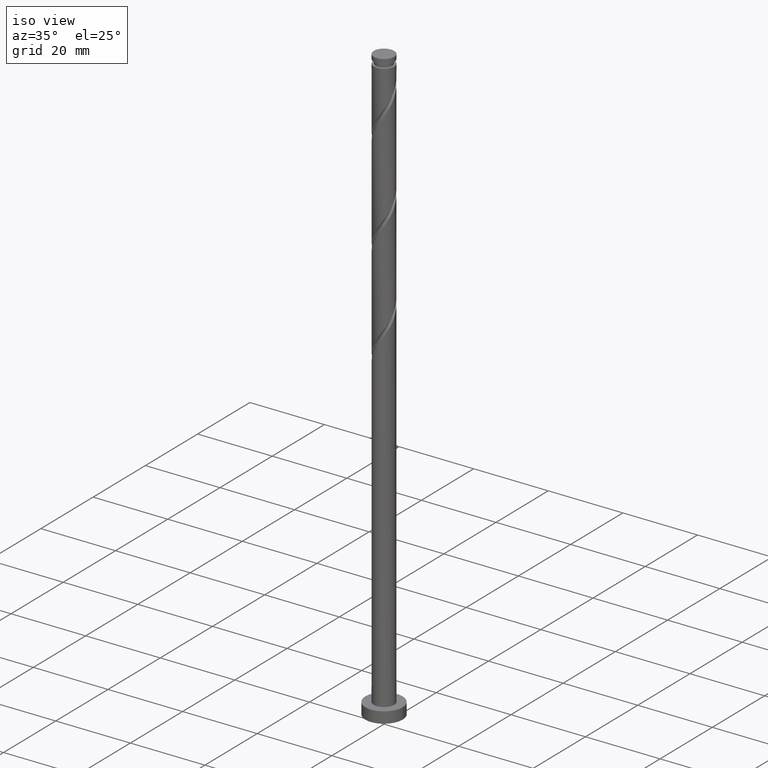
[diagram: clean part render]
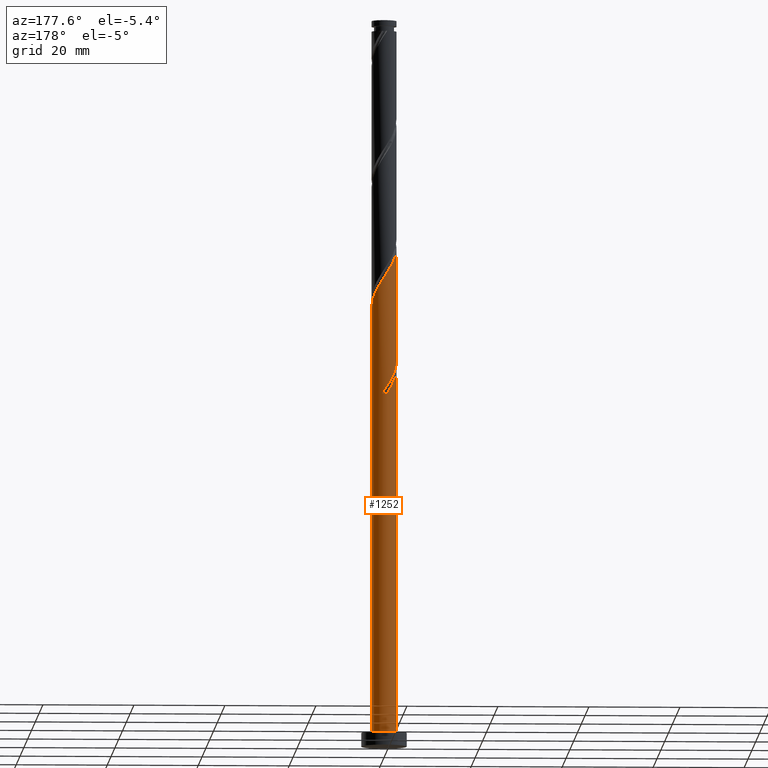
[diagram: tour spotlight — one face highlighted and labeled with its STEP entity id]
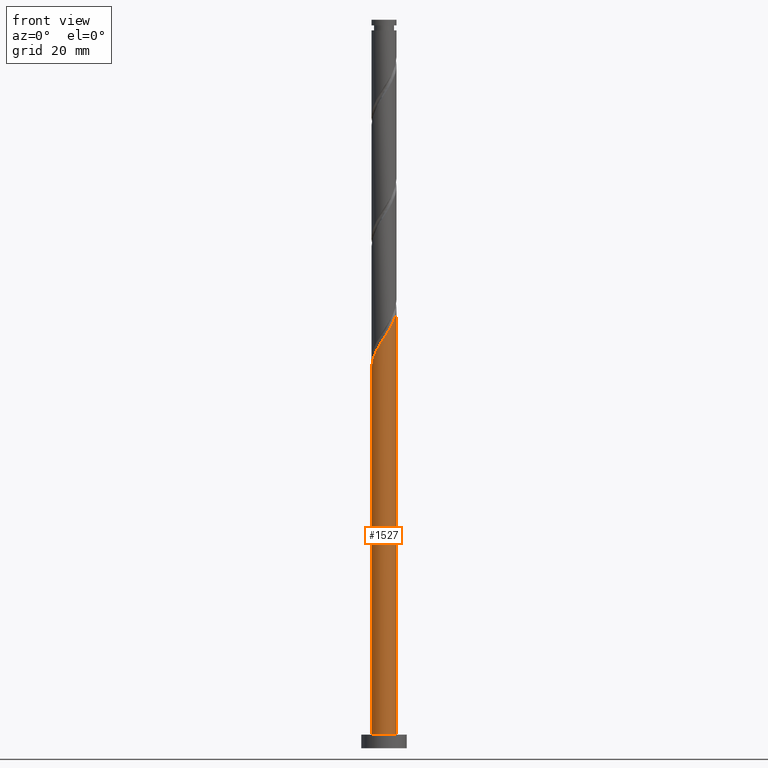
[diagram: tour spotlight — one face highlighted and labeled with its STEP entity id]
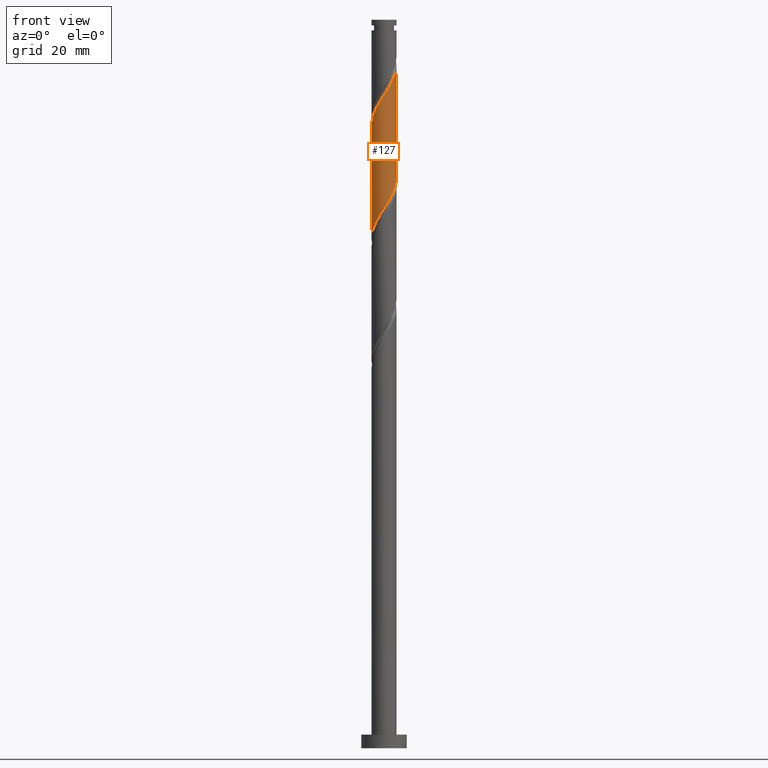
[diagram: tour spotlight — one face highlighted and labeled with its STEP entity id]
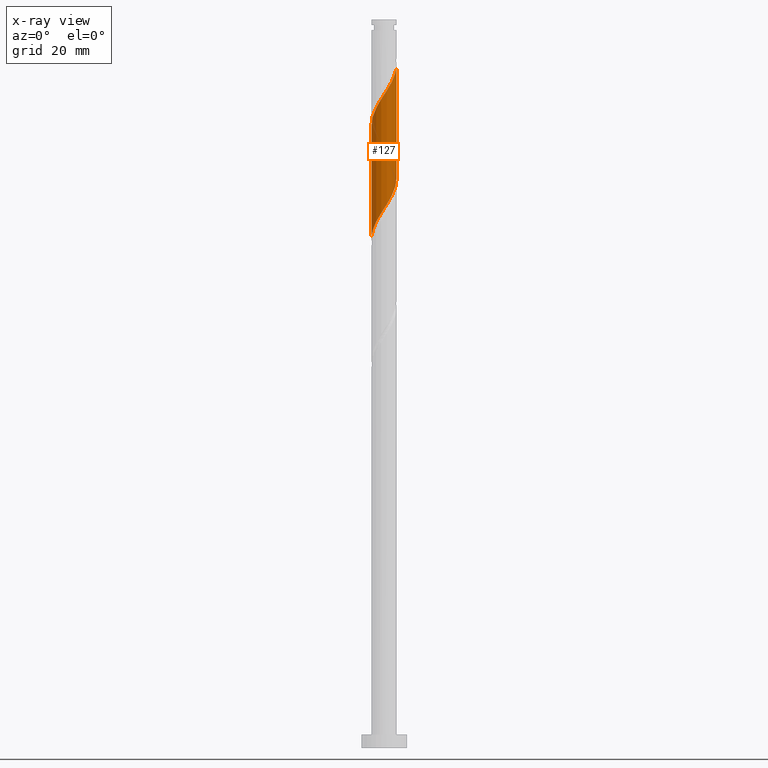
[diagram: x-ray of the same camera — body ghosted, this tour face saturated]
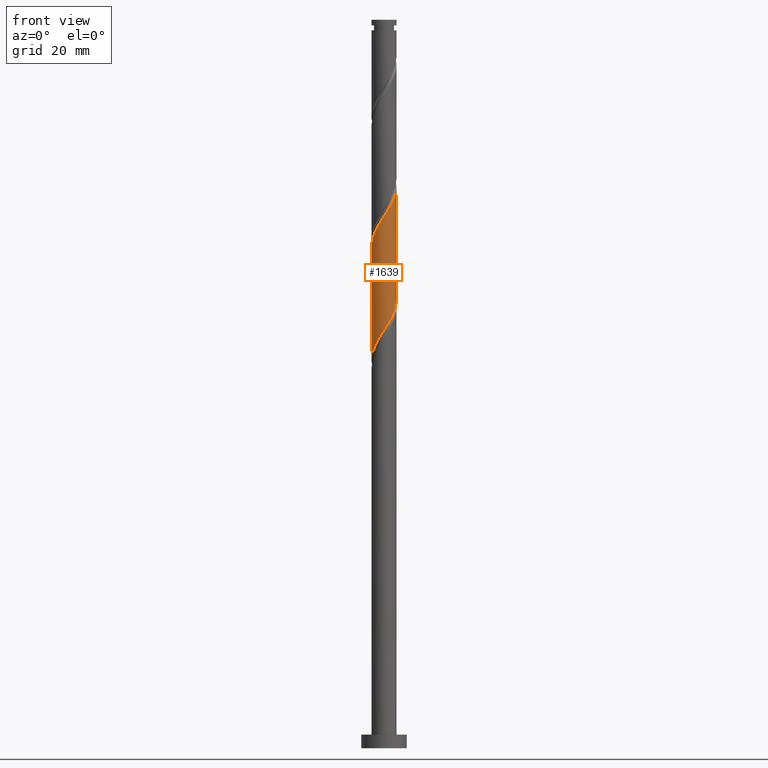
[diagram: tour spotlight — one face highlighted and labeled with its STEP entity id]
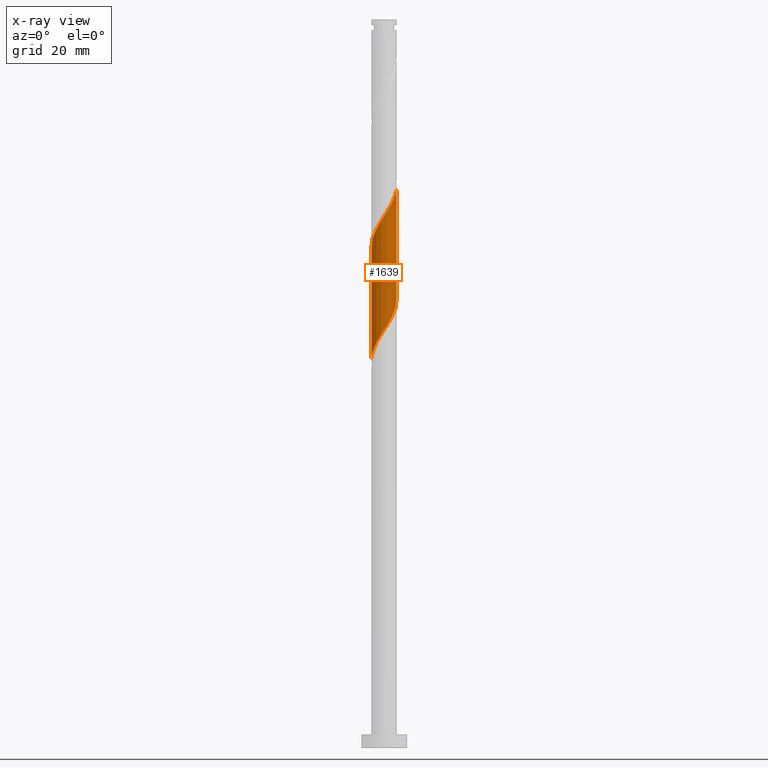
[diagram: x-ray of the same camera — body ghosted, this tour face saturated]
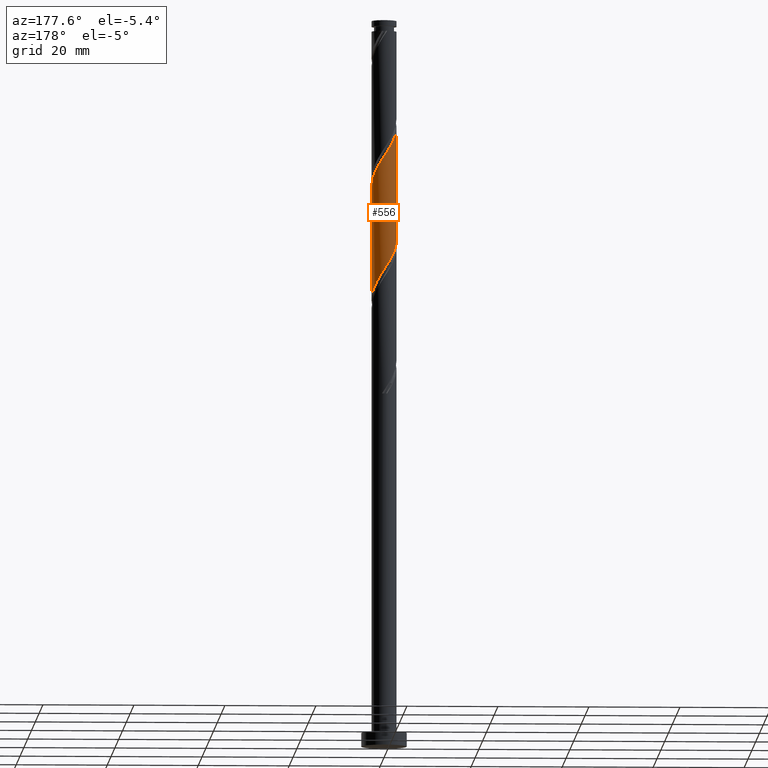
[diagram: tour spotlight — one face highlighted and labeled with its STEP entity id]
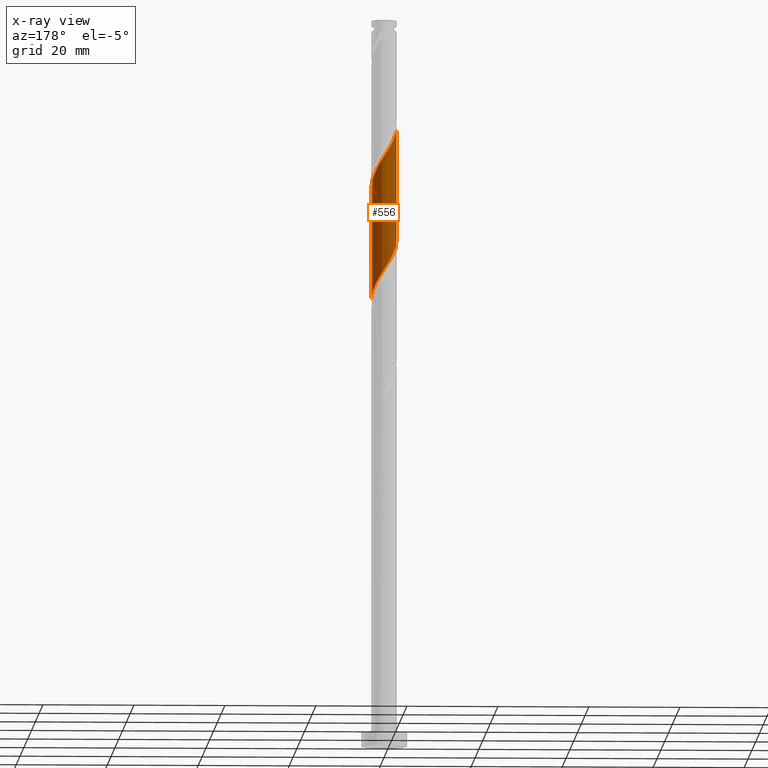
[diagram: x-ray of the same camera — body ghosted, this tour face saturated]
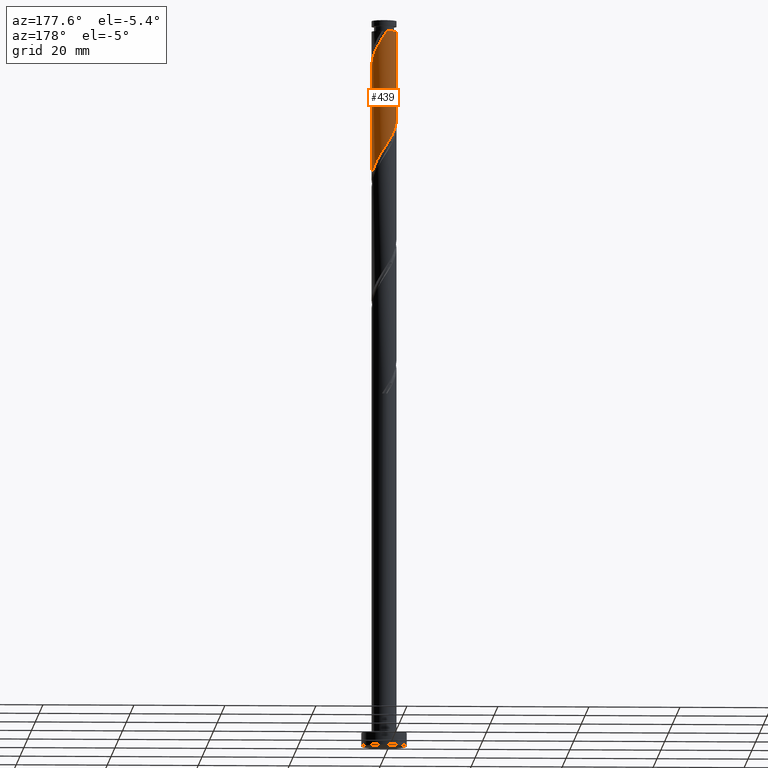
[diagram: tour spotlight — one face highlighted and labeled with its STEP entity id]
A machine part: a face-by-face anatomy tour. The part has 21 B-rep faces; the first image is the clean iso view, then the 6 largest visible faces are spotlighted one at a time (largest first), each with its STEP entity span.

Face 1 — auxiliary view, entity #1252. In plain terms, the highlighted cylindrical surface (edge-blend (fillet) strip) has radius 2.75 mm, axis along (-0, -0, -1).
Definition (entity closure, byte-faithful):
#20 = LINE ( 'NONE', #396, #344 ) ;
#33 = CARTESIAN_POINT ( 'NONE',  ( -2.200829683470559850, 1.695636222896790057, 80.69187648176318817 ) ) ;
#43 = EDGE_CURVE ( 'NONE', #1199, #1079, #1165, .T. ) ;
#46 = CARTESIAN_POINT ( 'NONE',  ( -2.750000000000000000, 0.000000000000000000, 3.000000000000000000 ) ) ;
#57 = CARTESIAN_POINT ( 'NONE',  ( 1.678377091053238068, 2.178428410627185396, 100.6918764817631597 ) ) ;
#59 = CARTESIAN_POINT ( 'NONE',  ( -2.750000000000002220, 0.3149545503090927512, 109.6594923525212835 ) ) ;
#87 = CARTESIAN_POINT ( 'NONE',  ( -2.224125231963128169, 1.617333284312469699, 82.51005829994501539 ) ) ;
#106 = LINE ( 'NONE', #148, #875 ) ;
#134 = AXIS2_PLACEMENT_3D ( 'NONE', #1464, #814, #238 ) ;
#143 =( BOUNDED_CURVE ( )  B_SPLINE_CURVE ( 2, ( #419, #1221, #1076, #297, #1444, #33, #171, #668, #1461, #795, #533 ),
 .UNSPECIFIED., .F., .T. ) 
 B_SPLINE_CURVE_WITH_KNOTS ( ( 3, 2, 2, 2, 2, 3 ),
 ( 0.000000000000000000, 0.01136363636363635354, 0.02272727272727270709, 0.03409090909090906063, 0.04545454545454541417, 0.05452521624175126619 ),
 .UNSPECIFIED. ) 
 CURVE ( )  GEOMETRIC_REPRESENTATION_ITEM ( )  RATIONAL_B_SPLINE_CURVE ( ( 0.9090909090909247148, 0.8998376744372267311, 0.9090909090909247148, 0.8998376744372267311, 0.9090909090909247148, 0.8998376744372267311, 0.9090909090909247148, 0.8998376744372267311, 0.9090909090909247148, 0.9017048011080043279, 0.9061101570135650096 ) ) 
 REPRESENTATION_ITEM ( '' )  );
#147 = ORIENTED_EDGE ( 'NONE', *, *, #266, .F. ) ;
#148 = CARTESIAN_POINT ( 'NONE',  ( 2.750000000000000000, 3.367778697655221012E-16, 160.0000000000000000 ) ) ;
#159 = AXIS2_PLACEMENT_3D ( 'NONE', #1047, #176, #676 ) ;
#168 = ORIENTED_EDGE ( 'NONE', *, *, #203, .T. ) ;
#171 = CARTESIAN_POINT ( 'NONE',  ( -2.395113114716217240, 1.351270945337904816, 81.29793708782376882 ) ) ;
#176 = DIRECTION ( 'NONE',  ( 0.000000000000000000, -0.000000000000000000, -1.000000000000000000 ) ) ;
#181 = CARTESIAN_POINT ( 'NONE',  ( 0.000000000000000000, 0.000000000000000000, 3.000000000000000000 ) ) ;
#184 = CARTESIAN_POINT ( 'NONE',  ( 0.1597605880921886268, 2.773681677939491497, 78.26763405752075187 ) ) ;
#195 = ORIENTED_EDGE ( 'NONE', *, *, #681, .F. ) ;
#203 = EDGE_CURVE ( 'NONE', #940, #331, #106, .T. ) ;
#238 = DIRECTION ( 'NONE',  ( -1.000000000000000000, 0.000000000000000000, 0.000000000000000000 ) ) ;
#261 = CARTESIAN_POINT ( 'NONE',  ( 2.224125231963131277, 1.617333284312470587, 99.47975526964197002 ) ) ;
#266 = EDGE_CURVE ( 'NONE', #878, #995, #20, .T. ) ;
#295 = CARTESIAN_POINT ( 'NONE',  ( 2.750000000000000000, 3.367778697655221012E-16, 3.000000000000000000 ) ) ;
#297 = CARTESIAN_POINT ( 'NONE',  ( -1.633964688862562742, 2.246996415572370953, 79.47975526964197002 ) ) ;
#299 = CARTESIAN_POINT ( 'NONE',  ( -1.917397186166560630, 1.971316319234579950, 106.7524825423692079 ) ) ;
#319 = DIRECTION ( 'NONE',  ( 1.000000000000000000, 0.000000000000000000, 0.000000000000000000 ) ) ;
#328 = CARTESIAN_POINT ( 'NONE',  ( -2.589687973961434686, 0.9252114339541628318, 83.72217951206620512 ) ) ;
#331 = VERTEX_POINT ( 'NONE', #295 ) ;
#344 = VECTOR ( 'NONE', #545, 1000.000000000000000 ) ;
#366 = EDGE_CURVE ( 'NONE', #969, #1321, #1183, .T. ) ;
#370 = CARTESIAN_POINT ( 'NONE',  ( -2.750000000000003109, -2.363177671152421160E-15, 83.47878563882591152 ) ) ;
#382 = CARTESIAN_POINT ( 'NONE',  ( 2.456662652402866076, 1.297552352829637545, 98.87369466358140357 ) ) ;
#387 = DIRECTION ( 'NONE',  ( -0.000000000000000000, -0.000000000000000000, -1.000000000000000000 ) ) ;
#396 = CARTESIAN_POINT ( 'NONE',  ( -2.750000000000000000, 0.000000000000000000, 160.0000000000000000 ) ) ;
#397 = CARTESIAN_POINT ( 'NONE',  ( 2.750000000000003109, 2.146303770951724296E-15, 96.81211897215924012 ) ) ;
#419 = CARTESIAN_POINT ( 'NONE',  ( -0.5472430904086413861, 2.695000000000002949, 77.66157345146014279 ) ) ;
#428 = CARTESIAN_POINT ( 'NONE',  ( -2.678791222997728649, 0.6217536357676989311, 109.1767249666116442 ) ) ;
#433 = CARTESIAN_POINT ( 'NONE',  ( -1.365166370583079658, 2.419742605459064055, 80.69187648176317396 ) ) ;
#438 = CARTESIAN_POINT ( 'NONE',  ( 0.2341933405814788094, 2.740009758965704645, 103.1161189060055818 ) ) ;
#472 = CARTESIAN_POINT ( 'NONE',  ( -2.745449597776792761, 0.1581344556611564423, 84.93430072418743748 ) ) ;
#533 = CARTESIAN_POINT ( 'NONE',  ( -2.750000000000003109, -2.363177671152421160E-15, 83.47878563882591152 ) ) ;
#539 = CARTESIAN_POINT ( 'NONE',  ( -0.6281472692551444137, 2.706337839991914240, 79.47975526964198423 ) ) ;
#545 = DIRECTION ( 'NONE',  ( -0.000000000000000000, -0.000000000000000000, -1.000000000000000000 ) ) ;
#555 = ORIENTED_EDGE ( 'NONE', *, *, #43, .F. ) ;
#562 = CARTESIAN_POINT ( 'NONE',  ( 1.365166370583080990, 2.419742605459066276, 101.2979370878238257 ) ) ;
#571 = CARTESIAN_POINT ( 'NONE',  ( -2.750000000000000888, 0.07913269794051754069, 85.05559659270947748 ) ) ;
#588 = CARTESIAN_POINT ( 'NONE',  ( -1.991587811523394036, 1.937114215795302297, 81.90399769388439211 ) ) ;
#668 = CARTESIAN_POINT ( 'NONE',  ( -2.589396545961876850, 1.006905667779021352, 81.90399769388439211 ) ) ;
#676 = DIRECTION ( 'NONE',  ( -1.000000000000000000, 0.000000000000000000, 0.000000000000000000 ) ) ;
#679 = CARTESIAN_POINT ( 'NONE',  ( -2.589396545961876850, 1.006905667779021352, 108.5706643605510919 ) ) ;
#681 = EDGE_CURVE ( 'NONE', #940, #1199, #1454, .T. ) ;
#700 = ORIENTED_EDGE ( 'NONE', *, *, #1316, .F. ) ;
#758 = EDGE_CURVE ( 'NONE', #331, #995, #1661, .T. ) ;
#765 = CARTESIAN_POINT ( 'NONE',  ( 1.991587811523399143, 1.937114215795304073, 100.0858158757025933 ) ) ;
#778 = CARTESIAN_POINT ( 'NONE',  ( -0.5472430904086414971, 2.695000000000002949, 77.66157345146014279 ) ) ;
#795 = CARTESIAN_POINT ( 'NONE',  ( -2.750000000000003109, 0.3149545503090893650, 82.99282568585462627 ) ) ;
#805 = CARTESIAN_POINT ( 'NONE',  ( -2.200829683470559850, 1.695636222896790057, 107.3585431484298880 ) ) ;
#809 = ORIENTED_EDGE ( 'NONE', *, *, #366, .T. ) ;
#814 = DIRECTION ( 'NONE',  ( -0.000000000000000000, -0.000000000000000000, -1.000000000000000000 ) ) ;
#816 = ORIENTED_EDGE ( 'NONE', *, *, #982, .F. ) ;
#826 = CARTESIAN_POINT ( 'NONE',  ( -0.9347255927250958107, 2.616318322060512624, 104.9343007241874233 ) ) ;
#833 = CARTESIAN_POINT ( 'NONE',  ( -2.456662652402862523, 1.297552352829637101, 83.11611890600559605 ) ) ;
#875 = VECTOR ( 'NONE', #1534, 1000.000000000000000 ) ;
#878 = VERTEX_POINT ( 'NONE', #370 ) ;
#918 = CARTESIAN_POINT ( 'NONE',  ( 2.745449597776794981, 0.1581344556611554986, 97.05551284539951951 ) ) ;
#935 = CYLINDRICAL_SURFACE ( 'NONE', #134, 2.750000000000000000 ) ;
#940 = VERTEX_POINT ( 'NONE', #1420 ) ;
#968 = DIRECTION ( 'NONE',  ( 0.000000000000000000, 0.000000000000000000, 1.000000000000000000 ) ) ;
#969 = VERTEX_POINT ( 'NONE', #778 ) ;
#982 = EDGE_CURVE ( 'NONE', #1079, #1321, #1575, .T. ) ;
#995 = VERTEX_POINT ( 'NONE', #46 ) ;
#1040 = CARTESIAN_POINT ( 'NONE',  ( -2.750000000000000000, 0.000000000000000000, 160.0000000000000000 ) ) ;
#1047 = CARTESIAN_POINT ( 'NONE',  ( 0.000000000000000000, 0.000000000000000000, 77.66157345146015700 ) ) ;
#1071 = VECTOR ( 'NONE', #387, 1000.000000000000000 ) ;
#1076 = CARTESIAN_POINT ( 'NONE',  ( -1.284345140793828888, 2.431657368816439568, 78.87369466358133252 ) ) ;
#1079 = VERTEX_POINT ( 'NONE', #1636 ) ;
#1086 = CARTESIAN_POINT ( 'NONE',  ( 0.6281472692551460790, 2.706337839991917793, 102.5100582999450438 ) ) ;
#1165 = LINE ( 'NONE', #1040, #1071 ) ;
#1183 = CIRCLE ( 'NONE', #159, 2.750000000000000000 ) ;
#1199 = VERTEX_POINT ( 'NONE', #1350 ) ;
#1204 = CARTESIAN_POINT ( 'NONE',  ( 0.9966568199191127020, 2.563040222725491812, 101.9039976938843921 ) ) ;
#1220 = CARTESIAN_POINT ( 'NONE',  ( -1.678377091053237402, 2.178428410627183176, 81.29793708782378303 ) ) ;
#1221 = CARTESIAN_POINT ( 'NONE',  ( -0.9347255927250958107, 2.616318322060512624, 78.26763405752075187 ) ) ;
#1236 = ORIENTED_EDGE ( 'NONE', *, *, #758, .T. ) ;
#1239 = CARTESIAN_POINT ( 'NONE',  ( -2.722713295520007737, 0.5528705150786890066, 84.32824011812679998 ) ) ;
#1246 = CARTESIAN_POINT ( 'NONE',  ( -2.750000000000000888, 3.043713013161521953E-15, 85.17769459742773108 ) ) ;
#1252 = ADVANCED_FACE ( 'NONE', ( #1475 ), #935, .T. ) ;
#1293 = CARTESIAN_POINT ( 'NONE',  ( 2.722713295520010846, 0.5528705150786885625, 97.66157345146015700 ) ) ;
#1309 = AXIS2_PLACEMENT_3D ( 'NONE', #181, #968, #319 ) ;
#1316 = EDGE_CURVE ( 'NONE', #969, #878, #143, .T. ) ;
#1321 = VERTEX_POINT ( 'NONE', #1574 ) ;
#1325 = CARTESIAN_POINT ( 'NONE',  ( -2.395113114716217240, 1.351270945337904816, 107.9646037544904118 ) ) ;
#1329 = CARTESIAN_POINT ( 'NONE',  ( -0.9966568199191119248, 2.563040222725489148, 80.08581587570256488 ) ) ;
#1335 = CARTESIAN_POINT ( 'NONE',  ( -2.750000000000003109, -2.363177671152421160E-15, 110.1454523054925829 ) ) ;
#1346 = CARTESIAN_POINT ( 'NONE',  ( -1.284345140793828888, 2.431657368816439568, 105.5403613302480039 ) ) ;
#1350 = CARTESIAN_POINT ( 'NONE',  ( -2.750000000000003109, -2.363177671152421160E-15, 110.1454523054925829 ) ) ;
#1399 = CARTESIAN_POINT ( 'NONE',  ( 2.589687973961438683, 0.9252114339541630539, 98.26763405752073766 ) ) ;
#1420 = CARTESIAN_POINT ( 'NONE',  ( 2.750000000000003109, 2.146303770951724296E-15, 96.81211897215925433 ) ) ;
#1444 = CARTESIAN_POINT ( 'NONE',  ( -1.917397186166560630, 1.971316319234579950, 80.08581587570255067 ) ) ;
#1452 = CARTESIAN_POINT ( 'NONE',  ( 0.5472430904086426073, 2.695000000000000728, 77.66157345146014279 ) ) ;
#1454 =( BOUNDED_CURVE ( )  B_SPLINE_CURVE ( 2, ( #397, #1562, #918, #1293, #1399, #382, #261, #765, #57, #562, #1204, #1086, #438, #1474, #1463, #826, #1346, #1456, #299, #805, #1325, #679, #428, #59, #1335 ),
 .UNSPECIFIED., .F., .T. ) 
 B_SPLINE_CURVE_WITH_KNOTS ( ( 3, 2, 2, 2, 2, 2, 2, 2, 2, 2, 2, 2, 3 ),
 ( 0.1795252162417512454, 0.1818181818181817677, 0.1931818181818182323, 0.2045454545454545858, 0.2159090909090909394, 0.2272727272727272929, 0.2386363636363636465, 0.2500000000000000000, 0.2613636363636363535, 0.2727272727272727071, 0.2840909090909090606, 0.2954545454545454142, 0.3045252162417511621 ),
 .UNSPECIFIED. ) 
 CURVE ( )  GEOMETRIC_REPRESENTATION_ITEM ( )  RATIONAL_B_SPLINE_CURVE ( ( 0.9061101570135648986, 0.9072237824201471179, 0.9090909090909247148, 0.8998376744372267311, 0.9090909090909247148, 0.8998376744372267311, 0.9090909090909247148, 0.8998376744372267311, 0.9090909090909247148, 0.8998376744372267311, 0.9090909090909247148, 0.8998376744372267311, 0.9090909090909247148, 0.8998376744372267311, 0.9090909090909247148, 0.8998376744372267311, 0.9090909090909247148, 0.8998376744372267311, 0.9090909090909247148, 0.8998376744372267311, 0.9090909090909247148, 0.8998376744372267311, 0.9090909090909247148, 0.9017048011080043279, 0.9061101570135647876 ) ) 
 REPRESENTATION_ITEM ( '' )  );
#1456 = CARTESIAN_POINT ( 'NONE',  ( -1.633964688862562742, 2.246996415572370953, 106.1464219363086556 ) ) ;
#1461 = CARTESIAN_POINT ( 'NONE',  ( -2.678791222997728649, 0.6217536357676989311, 82.51005829994498697 ) ) ;
#1463 = CARTESIAN_POINT ( 'NONE',  ( -0.5472430904086412751, 2.695000000000002949, 104.3282401181268142 ) ) ;
#1464 = CARTESIAN_POINT ( 'NONE',  ( 0.000000000000000000, 0.000000000000000000, 160.0000000000000000 ) ) ;
#1474 = CARTESIAN_POINT ( 'NONE',  ( -0.1597605880921881272, 2.773681677939495493, 103.7221795120662193 ) ) ;
#1475 = FACE_OUTER_BOUND ( 'NONE', #1653, .T. ) ;
#1534 = DIRECTION ( 'NONE',  ( -0.000000000000000000, -0.000000000000000000, -1.000000000000000000 ) ) ;
#1562 = CARTESIAN_POINT ( 'NONE',  ( 2.750000000000003109, 0.07913269794050993566, 96.93421697687746530 ) ) ;
#1572 = CARTESIAN_POINT ( 'NONE',  ( -0.2341933405814780322, 2.740009758965702868, 78.87369466358137515 ) ) ;
#1574 = CARTESIAN_POINT ( 'NONE',  ( 0.5472430904086426073, 2.695000000000000728, 77.66157345146014279 ) ) ;
#1575 =( BOUNDED_CURVE ( )  B_SPLINE_CURVE ( 2, ( #1246, #571, #472, #1239, #328, #833, #87, #588, #1220, #433, #1329, #539, #1572, #184, #1452 ),
 .UNSPECIFIED., .F., .T. ) 
 B_SPLINE_CURVE_WITH_KNOTS ( ( 3, 2, 2, 2, 2, 2, 2, 3 ),
 ( 0.9295252162417514397, 0.9318181818181817677, 0.9431818181818182323, 0.9545454545454545858, 0.9659090909090909394, 0.9772727272727272929, 0.9886363636363636465, 1.000000000000000000 ),
 .UNSPECIFIED. ) 
 CURVE ( )  GEOMETRIC_REPRESENTATION_ITEM ( )  RATIONAL_B_SPLINE_CURVE ( ( 0.9061101570135601246, 0.9072237824201422329, 0.9090909090909196077, 0.8998376744372220681, 0.9090909090909196077, 0.8998376744372220681, 0.9090909090909196077, 0.8998376744372220681, 0.9090909090909196077, 0.8998376744372220681, 0.9090909090909196077, 0.8998376744372220681, 0.9090909090909196077, 0.8998376744372220681, 0.9090909090909196077 ) ) 
 REPRESENTATION_ITEM ( '' )  );
#1636 = CARTESIAN_POINT ( 'NONE',  ( -2.750000000000000888, 3.043713013161521953E-15, 85.17769459742771687 ) ) ;
#1653 = EDGE_LOOP ( 'NONE', ( #195, #168, #1236, #147, #700, #809, #816, #555 ) ) ;
#1661 = CIRCLE ( 'NONE', #1309, 2.750000000000000000 ) ;

Face 2 — front view, entity #1527. In plain terms, the highlighted cylindrical surface (edge-blend (fillet) strip) has radius 2.75 mm, axis along (-0, -0, -1).
Definition (entity closure, byte-faithful):
#20 = LINE ( 'NONE', #396, #344 ) ;
#44 = CARTESIAN_POINT ( 'NONE',  ( -2.745449597776794981, -0.1581344556611559427, 83.72217951206619091 ) ) ;
#46 = CARTESIAN_POINT ( 'NONE',  ( -2.750000000000000000, 0.000000000000000000, 3.000000000000000000 ) ) ;
#80 = EDGE_CURVE ( 'NONE', #995, #331, #789, .T. ) ;
#90 = CARTESIAN_POINT ( 'NONE',  ( -2.750000000000002665, -0.07913269794051071282, 83.60088364354412249 ) ) ;
#106 = LINE ( 'NONE', #148, #875 ) ;
#119 = CARTESIAN_POINT ( 'NONE',  ( 0.1597605880921885713, -2.773681677939495049, 90.38884617873286231 ) ) ;
#136 = CARTESIAN_POINT ( 'NONE',  ( 1.633964688862563408, -2.246996415572370953, 92.81308860297529861 ) ) ;
#148 = CARTESIAN_POINT ( 'NONE',  ( 2.750000000000000000, 3.367778697655221012E-16, 160.0000000000000000 ) ) ;
#162 = CARTESIAN_POINT ( 'NONE',  ( 0.000000000000000000, 0.000000000000000000, 160.0000000000000000 ) ) ;
#203 = EDGE_CURVE ( 'NONE', #940, #331, #106, .T. ) ;
#207 = CARTESIAN_POINT ( 'NONE',  ( -0.9966568199191141453, -2.563040222725491368, 88.57066436055102088 ) ) ;
#234 = CARTESIAN_POINT ( 'NONE',  ( 0.000000000000000000, 0.000000000000000000, 3.000000000000000000 ) ) ;
#236 = AXIS2_PLACEMENT_3D ( 'NONE', #234, #1153, #1145 ) ;
#266 = EDGE_CURVE ( 'NONE', #878, #995, #20, .T. ) ;
#269 = ORIENTED_EDGE ( 'NONE', *, *, #203, .F. ) ;
#280 = CARTESIAN_POINT ( 'NONE',  ( 1.284345140793828444, -2.431657368816440457, 92.20702799691468954 ) ) ;
#295 = CARTESIAN_POINT ( 'NONE',  ( 2.750000000000000000, 3.367778697655221012E-16, 3.000000000000000000 ) ) ;
#331 = VERTEX_POINT ( 'NONE', #295 ) ;
#344 = VECTOR ( 'NONE', #545, 1000.000000000000000 ) ;
#370 = CARTESIAN_POINT ( 'NONE',  ( -2.750000000000003109, -2.363177671152421160E-15, 83.47878563882591152 ) ) ;
#396 = CARTESIAN_POINT ( 'NONE',  ( -2.750000000000000000, 0.000000000000000000, 160.0000000000000000 ) ) ;
#417 = CYLINDRICAL_SURFACE ( 'NONE', #1286, 2.750000000000000000 ) ;
#434 = CARTESIAN_POINT ( 'NONE',  ( 2.750000000000003109, 2.146303770951724296E-15, 96.81211897215924012 ) ) ;
#445 = EDGE_LOOP ( 'NONE', ( #269, #934, #593, #1356 ) ) ;
#466 = CARTESIAN_POINT ( 'NONE',  ( -0.6281472692551457460, -2.706337839991918237, 89.17672496661165837 ) ) ;
#545 = DIRECTION ( 'NONE',  ( -0.000000000000000000, -0.000000000000000000, -1.000000000000000000 ) ) ;
#593 = ORIENTED_EDGE ( 'NONE', *, *, #266, .T. ) ;
#619 = CARTESIAN_POINT ( 'NONE',  ( 0.5472430904086416081, -2.695000000000002949, 90.99490678479347139 ) ) ;
#627 = CARTESIAN_POINT ( 'NONE',  ( 1.917397186166560630, -1.971316319234579950, 93.41914920903589348 ) ) ;
#636 = CARTESIAN_POINT ( 'NONE',  ( 2.200829683470559850, -1.695636222896790057, 94.02520981509655940 ) ) ;
#643 = CARTESIAN_POINT ( 'NONE',  ( 2.395113114716216796, -1.351270945337905482, 94.63127042115708321 ) ) ;
#658 = DIRECTION ( 'NONE',  ( -1.000000000000000000, 0.000000000000000000, 0.000000000000000000 ) ) ;
#738 = CARTESIAN_POINT ( 'NONE',  ( -2.224125231963130389, -1.617333284312471031, 86.14642193630862721 ) ) ;
#789 = CIRCLE ( 'NONE', #236, 2.750000000000000000 ) ;
#875 = VECTOR ( 'NONE', #1534, 1000.000000000000000 ) ;
#878 = VERTEX_POINT ( 'NONE', #370 ) ;
#892 = EDGE_CURVE ( 'NONE', #878, #940, #1230, .T. ) ;
#910 = CARTESIAN_POINT ( 'NONE',  ( 2.750000000000003109, -0.3149545503090897536, 96.32615901918796908 ) ) ;
#934 = ORIENTED_EDGE ( 'NONE', *, *, #892, .F. ) ;
#940 = VERTEX_POINT ( 'NONE', #1420 ) ;
#946 = CARTESIAN_POINT ( 'NONE',  ( -2.722713295520010846, -0.5528705150786888955, 84.32824011812681420 ) ) ;
#995 = VERTEX_POINT ( 'NONE', #46 ) ;
#1012 = CARTESIAN_POINT ( 'NONE',  ( 2.678791222997728649, -0.6217536357676989311, 95.84339163327828715 ) ) ;
#1023 = CARTESIAN_POINT ( 'NONE',  ( 0.9347255927250954777, -2.616318322060513513, 91.60096739085410888 ) ) ;
#1141 = CARTESIAN_POINT ( 'NONE',  ( 2.589396545961877738, -1.006905667779020019, 95.23733102721773491 ) ) ;
#1145 = DIRECTION ( 'NONE',  ( 1.000000000000000000, 0.000000000000000000, 0.000000000000000000 ) ) ;
#1153 = DIRECTION ( 'NONE',  ( 0.000000000000000000, 0.000000000000000000, 1.000000000000000000 ) ) ;
#1230 =( BOUNDED_CURVE ( )  B_SPLINE_CURVE ( 2, ( #1498, #90, #44, #946, #1458, #1258, #738, #1267, #1623, #1376, #207, #466, #1619, #119, #619, #1023, #280, #136, #627, #636, #643, #1141, #1012, #910, #434 ),
 .UNSPECIFIED., .F., .T. ) 
 B_SPLINE_CURVE_WITH_KNOTS ( ( 3, 2, 2, 2, 2, 2, 2, 2, 2, 2, 2, 2, 3 ),
 ( 0.05452521624175125925, 0.05681818181818176772, 0.06818181818181823228, 0.07954545454545458583, 0.09090909090909093937, 0.1022727272727272929, 0.1136363636363636465, 0.1250000000000000000, 0.1363636363636363535, 0.1477272727272727071, 0.1590909090909090606, 0.1704545454545454142, 0.1795252162417512454 ),
 .UNSPECIFIED. ) 
 CURVE ( )  GEOMETRIC_REPRESENTATION_ITEM ( )  RATIONAL_B_SPLINE_CURVE ( ( 0.9061101570135650096, 0.9072237824201472289, 0.9090909090909247148, 0.8998376744372267311, 0.9090909090909247148, 0.8998376744372267311, 0.9090909090909247148, 0.8998376744372267311, 0.9090909090909247148, 0.8998376744372267311, 0.9090909090909247148, 0.8998376744372267311, 0.9090909090909247148, 0.8998376744372267311, 0.9090909090909247148, 0.8998376744372267311, 0.9090909090909247148, 0.8998376744372267311, 0.9090909090909247148, 0.8998376744372267311, 0.9090909090909247148, 0.8998376744372267311, 0.9090909090909247148, 0.9017048011080043279, 0.9061101570135648986 ) ) 
 REPRESENTATION_ITEM ( '' )  );
#1258 = CARTESIAN_POINT ( 'NONE',  ( -2.456662652402865632, -1.297552352829638656, 85.54036133024806077 ) ) ;
#1267 = CARTESIAN_POINT ( 'NONE',  ( -1.991587811523397589, -1.937114215795305183, 86.75248254236922207 ) ) ;
#1286 = AXIS2_PLACEMENT_3D ( 'NONE', #162, #1573, #658 ) ;
#1356 = ORIENTED_EDGE ( 'NONE', *, *, #80, .T. ) ;
#1376 = CARTESIAN_POINT ( 'NONE',  ( -1.365166370583081878, -2.419742605459066276, 87.96460375449044022 ) ) ;
#1420 = CARTESIAN_POINT ( 'NONE',  ( 2.750000000000003109, 2.146303770951724296E-15, 96.81211897215925433 ) ) ;
#1458 = CARTESIAN_POINT ( 'NONE',  ( -2.589687973961438683, -0.9252114339541632759, 84.93430072418739485 ) ) ;
#1498 = CARTESIAN_POINT ( 'NONE',  ( -2.750000000000003109, -2.363177671152421160E-15, 83.47878563882591152 ) ) ;
#1527 = ADVANCED_FACE ( 'NONE', ( #1580 ), #417, .T. ) ;
#1534 = DIRECTION ( 'NONE',  ( -0.000000000000000000, -0.000000000000000000, -1.000000000000000000 ) ) ;
#1573 = DIRECTION ( 'NONE',  ( -0.000000000000000000, -0.000000000000000000, -1.000000000000000000 ) ) ;
#1580 = FACE_OUTER_BOUND ( 'NONE', #445, .T. ) ;
#1619 = CARTESIAN_POINT ( 'NONE',  ( -0.2341933405814785873, -2.740009758965704645, 89.78278557267226745 ) ) ;
#1623 = CARTESIAN_POINT ( 'NONE',  ( -1.678377091053239178, -2.178428410627185396, 87.35854314842984536 ) ) ;

Face 3 — front view, entity #127. An x-ray twin of the same camera follows (body ghosted, this face saturated) — the face is partly hidden behind the body. In plain terms, the highlighted cylindrical surface (edge-blend (fillet) strip) has radius 2.75 mm, axis along (-0, -0, -1).
Definition (entity closure, byte-faithful):
#5 = CARTESIAN_POINT ( 'NONE',  ( -0.6281472692551457460, -2.706337839991918237, 142.5100582999450580 ) ) ;
#32 = CARTESIAN_POINT ( 'NONE',  ( -1.991587811523397589, -1.937114215795305183, 140.0858158757026217 ) ) ;
#82 = ORIENTED_EDGE ( 'NONE', *, *, #385, .F. ) ;
#103 = CARTESIAN_POINT ( 'NONE',  ( 1.917397186166560630, -1.971316319234579950, 146.7524825423692221 ) ) ;
#121 = CARTESIAN_POINT ( 'NONE',  ( 2.750000000000000444, 4.015906358888788516E-15, 125.1776945974277311 ) ) ;
#127 = ADVANCED_FACE ( 'NONE', ( #737 ), #372, .T. ) ;
#150 = CARTESIAN_POINT ( 'NONE',  ( 1.365166370583078992, -2.419742605459064055, 120.6918764817631597 ) ) ;
#163 = CARTESIAN_POINT ( 'NONE',  ( -2.589687973961438683, -0.9252114339541632759, 138.2676340575207234 ) ) ;
#185 = LINE ( 'NONE', #1343, #1235 ) ;
#235 = CARTESIAN_POINT ( 'NONE',  ( 2.395113114716216796, -1.351270945337905482, 147.9646037544903834 ) ) ;
#279 = CARTESIAN_POINT ( 'NONE',  ( -2.745449597776794981, -0.1581344556611559427, 137.0555128453995337 ) ) ;
#284 = CARTESIAN_POINT ( 'NONE',  ( -2.750000000000003553, 1.480725249646137676E-15, 136.8121189721592827 ) ) ;
#311 = CARTESIAN_POINT ( 'NONE',  ( 1.991587811523394924, -1.937114215795302075, 121.9039976938843637 ) ) ;
#347 = CARTESIAN_POINT ( 'NONE',  ( 2.750000000000003109, 2.146303770951724296E-15, 150.1454523054925971 ) ) ;
#372 = CYLINDRICAL_SURFACE ( 'NONE', #760, 2.750000000000000000 ) ;
#385 = EDGE_CURVE ( 'NONE', #1291, #917, #879, .T. ) ;
#404 = CARTESIAN_POINT ( 'NONE',  ( 0.1597605880921885713, -2.773681677939495049, 143.7221795120662478 ) ) ;
#408 = CARTESIAN_POINT ( 'NONE',  ( 2.750000000000000444, 4.015906358888788516E-15, 125.1776945974277311 ) ) ;
#409 = CARTESIAN_POINT ( 'NONE',  ( -2.456662652402865632, -1.297552352829638656, 138.8736946635813752 ) ) ;
#436 = CARTESIAN_POINT ( 'NONE',  ( 2.750000000000000000, 3.367778697655221012E-16, 160.0000000000000000 ) ) ;
#468 = EDGE_CURVE ( 'NONE', #1614, #1105, #597, .T. ) ;
#493 = LINE ( 'NONE', #436, #938 ) ;
#510 = CARTESIAN_POINT ( 'NONE',  ( -0.2341933405814785873, -2.740009758965704645, 143.1161189060055392 ) ) ;
#567 = CARTESIAN_POINT ( 'NONE',  ( 2.750000000000003553, -0.3149545503090862009, 149.6594923525213119 ) ) ;
#582 = EDGE_LOOP ( 'NONE', ( #1327, #82, #1438, #819 ) ) ;
#597 =( BOUNDED_CURVE ( )  B_SPLINE_CURVE ( 2, ( #121, #621, #1152, #1658, #1540, #1279, #631, #311, #665, #150, #650, #947, #780, #1305, #939, #799, #1612, #980, #839, #817, #1109, #606, #1398, #1514, #1466 ),
 .UNSPECIFIED., .F., .T. ) 
 B_SPLINE_CURVE_WITH_KNOTS ( ( 3, 2, 2, 2, 2, 2, 2, 2, 2, 2, 2, 2, 3 ),
 ( 0.5545252162417512176, 0.5568181818181817677, 0.5681818181818182323, 0.5795454545454545858, 0.5909090909090909394, 0.6022727272727272929, 0.6136363636363636465, 0.6250000000000000000, 0.6363636363636363535, 0.6477272727272727071, 0.6590909090909090606, 0.6704545454545454142, 0.6795252162417513286 ),
 .UNSPECIFIED. ) 
 CURVE ( )  GEOMETRIC_REPRESENTATION_ITEM ( )  RATIONAL_B_SPLINE_CURVE ( ( 0.9061101570135599026, 0.9072237824201421219, 0.9090909090909196077, 0.8998376744372220681, 0.9090909090909196077, 0.8998376744372220681, 0.9090909090909196077, 0.8998376744372220681, 0.9090909090909196077, 0.8998376744372220681, 0.9090909090909196077, 0.8998376744372220681, 0.9090909090909196077, 0.8998376744372220681, 0.9090909090909196077, 0.8998376744372220681, 0.9090909090909196077, 0.8998376744372220681, 0.9090909090909196077, 0.8998376744372220681, 0.9090909090909196077, 0.8998376744372220681, 0.9090909090909196077, 0.9017048011079995540, 0.9061101570135600136 ) ) 
 REPRESENTATION_ITEM ( '' )  );
#604 = CARTESIAN_POINT ( 'NONE',  ( 0.000000000000000000, 0.000000000000000000, 160.0000000000000000 ) ) ;
#606 = CARTESIAN_POINT ( 'NONE',  ( -2.589396545961872853, -1.006905667779018687, 113.4191492090358508 ) ) ;
#621 = CARTESIAN_POINT ( 'NONE',  ( 2.750000000000001332, -0.07913269794051037975, 125.0555965927094917 ) ) ;
#631 = CARTESIAN_POINT ( 'NONE',  ( 2.224125231963128169, -1.617333284312469699, 122.5100582999449728 ) ) ;
#650 = CARTESIAN_POINT ( 'NONE',  ( 0.9966568199191119248, -2.563040222725489148, 120.0858158757025791 ) ) ;
#665 = CARTESIAN_POINT ( 'NONE',  ( 1.678377091053236514, -2.178428410627183176, 121.2979370878237830 ) ) ;
#737 = FACE_OUTER_BOUND ( 'NONE', #582, .T. ) ;
#760 = AXIS2_PLACEMENT_3D ( 'NONE', #604, #1138, #888 ) ;
#780 = CARTESIAN_POINT ( 'NONE',  ( 0.2341933405814771163, -2.740009758965702868, 118.8736946635813609 ) ) ;
#784 = CARTESIAN_POINT ( 'NONE',  ( -2.722713295520010846, -0.5528705150786888955, 137.6615734514601854 ) ) ;
#799 = CARTESIAN_POINT ( 'NONE',  ( -0.9347255927250950336, -2.616318322060508628, 117.0555128453995479 ) ) ;
#817 = CARTESIAN_POINT ( 'NONE',  ( -2.200829683470557629, -1.695636222896786949, 114.6312704211570832 ) ) ;
#819 = ORIENTED_EDGE ( 'NONE', *, *, #468, .F. ) ;
#839 = CARTESIAN_POINT ( 'NONE',  ( -1.917397186166559520, -1.971316319234577064, 115.2373310272177207 ) ) ;
#879 =( BOUNDED_CURVE ( )  B_SPLINE_CURVE ( 2, ( #921, #1434, #279, #784, #163, #409, #1190, #32, #931, #974, #1502, #5, #510, #404, #1292, #1613, #1257, #1351, #103, #1525, #235, #948, #1340, #567, #1481 ),
 .UNSPECIFIED., .F., .T. ) 
 B_SPLINE_CURVE_WITH_KNOTS ( ( 3, 2, 2, 2, 2, 2, 2, 2, 2, 2, 2, 2, 3 ),
 ( 0.5545252162417512176, 0.5568181818181818787, 0.5681818181818181213, 0.5795454545454545858, 0.5909090909090908283, 0.6022727272727272929, 0.6136363636363636465, 0.6250000000000000000, 0.6363636363636363535, 0.6477272727272727071, 0.6590909090909091717, 0.6704545454545454142, 0.6795252162417514397 ),
 .UNSPECIFIED. ) 
 CURVE ( )  GEOMETRIC_REPRESENTATION_ITEM ( )  RATIONAL_B_SPLINE_CURVE ( ( 0.9061101570135647876, 0.9072237824201470069, 0.9090909090909247148, 0.8998376744372267311, 0.9090909090909247148, 0.8998376744372267311, 0.9090909090909247148, 0.8998376744372267311, 0.9090909090909247148, 0.8998376744372267311, 0.9090909090909247148, 0.8998376744372267311, 0.9090909090909247148, 0.8998376744372267311, 0.9090909090909247148, 0.8998376744372267311, 0.9090909090909247148, 0.8998376744372267311, 0.9090909090909247148, 0.8998376744372267311, 0.9090909090909247148, 0.8998376744372267311, 0.9090909090909247148, 0.9017048011080042169, 0.9061101570135650096 ) ) 
 REPRESENTATION_ITEM ( '' )  );
#888 = DIRECTION ( 'NONE',  ( -1.000000000000000000, 0.000000000000000000, 0.000000000000000000 ) ) ;
#917 = VERTEX_POINT ( 'NONE', #347 ) ;
#921 = CARTESIAN_POINT ( 'NONE',  ( -2.750000000000003553, 1.480725249646137676E-15, 136.8121189721592827 ) ) ;
#924 = CARTESIAN_POINT ( 'NONE',  ( -2.750000000000000888, 3.043713013161521953E-15, 111.8443612640943456 ) ) ;
#931 = CARTESIAN_POINT ( 'NONE',  ( -1.678377091053239178, -2.178428410627185396, 140.6918764817631313 ) ) ;
#938 = VECTOR ( 'NONE', #1317, 1000.000000000000000 ) ;
#939 = CARTESIAN_POINT ( 'NONE',  ( -0.5472430904086422743, -2.695000000000000284, 117.6615734514601286 ) ) ;
#942 = DIRECTION ( 'NONE',  ( -0.000000000000000000, -0.000000000000000000, -1.000000000000000000 ) ) ;
#947 = CARTESIAN_POINT ( 'NONE',  ( 0.6281472692551450798, -2.706337839991913796, 119.4797552696419558 ) ) ;
#948 = CARTESIAN_POINT ( 'NONE',  ( 2.589396545961877738, -1.006905667779020019, 148.5706643605510635 ) ) ;
#974 = CARTESIAN_POINT ( 'NONE',  ( -1.365166370583081878, -2.419742605459066276, 141.2979370878238115 ) ) ;
#980 = CARTESIAN_POINT ( 'NONE',  ( -1.633964688862560743, -2.246996415572367845, 115.8433916332783440 ) ) ;
#1105 = VERTEX_POINT ( 'NONE', #924 ) ;
#1109 = CARTESIAN_POINT ( 'NONE',  ( -2.395113114716215463, -1.351270945337903040, 114.0252098150965026 ) ) ;
#1138 = DIRECTION ( 'NONE',  ( -0.000000000000000000, -0.000000000000000000, -1.000000000000000000 ) ) ;
#1152 = CARTESIAN_POINT ( 'NONE',  ( 2.745449597776792761, -0.1581344556611568586, 124.9343007241874375 ) ) ;
#1190 = CARTESIAN_POINT ( 'NONE',  ( -2.224125231963130389, -1.617333284312471031, 139.4797552696419700 ) ) ;
#1235 = VECTOR ( 'NONE', #942, 1000.000000000000000 ) ;
#1257 = CARTESIAN_POINT ( 'NONE',  ( 1.284345140793828444, -2.431657368816440457, 145.5403613302480323 ) ) ;
#1279 = CARTESIAN_POINT ( 'NONE',  ( 2.456662652402862523, -1.297552352829636879, 123.1161189060055818 ) ) ;
#1291 = VERTEX_POINT ( 'NONE', #284 ) ;
#1292 = CARTESIAN_POINT ( 'NONE',  ( 0.5472430904086416081, -2.695000000000002949, 144.3282401181267858 ) ) ;
#1299 = EDGE_CURVE ( 'NONE', #917, #1614, #493, .T. ) ;
#1305 = CARTESIAN_POINT ( 'NONE',  ( -0.1597605880921894872, -2.773681677939491941, 118.2676340575207519 ) ) ;
#1317 = DIRECTION ( 'NONE',  ( -0.000000000000000000, -0.000000000000000000, -1.000000000000000000 ) ) ;
#1327 = ORIENTED_EDGE ( 'NONE', *, *, #1299, .F. ) ;
#1340 = CARTESIAN_POINT ( 'NONE',  ( 2.678791222997728649, -0.6217536357676989311, 149.1767249666116300 ) ) ;
#1343 = CARTESIAN_POINT ( 'NONE',  ( -2.750000000000000000, 0.000000000000000000, 160.0000000000000000 ) ) ;
#1351 = CARTESIAN_POINT ( 'NONE',  ( 1.633964688862563408, -2.246996415572370953, 146.1464219363086272 ) ) ;
#1398 = CARTESIAN_POINT ( 'NONE',  ( -2.678791222997725985, -0.6217536357676975989, 112.8130886029753128 ) ) ;
#1434 = CARTESIAN_POINT ( 'NONE',  ( -2.750000000000003553, -0.07913269794050621642, 136.9342169768774795 ) ) ;
#1438 = ORIENTED_EDGE ( 'NONE', *, *, #1551, .T. ) ;
#1466 = CARTESIAN_POINT ( 'NONE',  ( -2.750000000000000888, 3.043713013161522347E-15, 111.8443612640943456 ) ) ;
#1481 = CARTESIAN_POINT ( 'NONE',  ( 2.750000000000003109, 2.146303770951724296E-15, 150.1454523054925971 ) ) ;
#1502 = CARTESIAN_POINT ( 'NONE',  ( -0.9966568199191141453, -2.563040222725491368, 141.9039976938843779 ) ) ;
#1514 = CARTESIAN_POINT ( 'NONE',  ( -2.750000000000000444, -0.3149545503090859233, 112.3303212170656593 ) ) ;
#1525 = CARTESIAN_POINT ( 'NONE',  ( 2.200829683470559850, -1.695636222896790057, 147.3585431484298169 ) ) ;
#1540 = CARTESIAN_POINT ( 'NONE',  ( 2.589687973961434686, -0.9252114339541632759, 123.7221795120662051 ) ) ;
#1551 = EDGE_CURVE ( 'NONE', #1291, #1105, #185, .T. ) ;
#1612 = CARTESIAN_POINT ( 'NONE',  ( -1.284345140793827555, -2.431657368816438236, 116.4494522393389531 ) ) ;
#1613 = CARTESIAN_POINT ( 'NONE',  ( 0.9347255927250954777, -2.616318322060513513, 144.9343007241874091 ) ) ;
#1614 = VERTEX_POINT ( 'NONE', #408 ) ;
#1658 = CARTESIAN_POINT ( 'NONE',  ( 2.722713295520007737, -0.5528705150786894507, 124.3282401181268000 ) ) ;

Face 4 — front view, entity #1639. An x-ray twin of the same camera follows (body ghosted, this face saturated) — the face is partly hidden behind the body. In plain terms, the highlighted cylindrical surface (edge-blend (fillet) strip) has radius 2.75 mm, axis along (-0, -0, -1).
Definition (entity closure, byte-faithful):
#2 = CARTESIAN_POINT ( 'NONE',  ( 1.678377091053236514, -2.178428410627183176, 94.63127042115712584 ) ) ;
#6 = CARTESIAN_POINT ( 'NONE',  ( 2.395113114716216796, -1.351270945337905482, 121.2979370878237546 ) ) ;
#16 =( BOUNDED_CURVE ( )  B_SPLINE_CURVE ( 2, ( #374, #624, #891, #649, #739, #754, #115, #1282, #2, #897, #761, #265, #1266, #112, #614, #1015, #242, #122, #1532, #829, #423, #925, #283, #1080, #648 ),
 .UNSPECIFIED., .F., .T. ) 
 B_SPLINE_CURVE_WITH_KNOTS ( ( 3, 2, 2, 2, 2, 2, 2, 2, 2, 2, 2, 2, 3 ),
 ( 0.8045252162417513286, 0.8068181818181817677, 0.8181818181818182323, 0.8295454545454545858, 0.8409090909090909394, 0.8522727272727272929, 0.8636363636363636465, 0.8750000000000000000, 0.8863636363636363535, 0.8977272727272727071, 0.9090909090909090606, 0.9204545454545454142, 0.9295252162417514397 ),
 .UNSPECIFIED. ) 
 CURVE ( )  GEOMETRIC_REPRESENTATION_ITEM ( )  RATIONAL_B_SPLINE_CURVE ( ( 0.9061101570135600136, 0.9072237824201421219, 0.9090909090909196077, 0.8998376744372220681, 0.9090909090909196077, 0.8998376744372220681, 0.9090909090909196077, 0.8998376744372220681, 0.9090909090909196077, 0.8998376744372220681, 0.9090909090909196077, 0.8998376744372220681, 0.9090909090909196077, 0.8998376744372220681, 0.9090909090909196077, 0.8998376744372220681, 0.9090909090909196077, 0.8998376744372220681, 0.9090909090909196077, 0.8998376744372220681, 0.9090909090909196077, 0.8998376744372220681, 0.9090909090909196077, 0.9017048011079994430, 0.9061101570135601246 ) ) 
 REPRESENTATION_ITEM ( '' )  );
#40 = LINE ( 'NONE', #1060, #1072 ) ;
#43 = EDGE_CURVE ( 'NONE', #1199, #1079, #1165, .T. ) ;
#54 = DIRECTION ( 'NONE',  ( -0.000000000000000000, -0.000000000000000000, -1.000000000000000000 ) ) ;
#112 = CARTESIAN_POINT ( 'NONE',  ( -0.1597605880921894872, -2.773681677939491941, 91.60096739085410888 ) ) ;
#115 = CARTESIAN_POINT ( 'NONE',  ( 2.224125231963128169, -1.617333284312469699, 95.84339163327830136 ) ) ;
#122 = CARTESIAN_POINT ( 'NONE',  ( -1.633964688862560743, -2.246996415572367845, 89.17672496661164416 ) ) ;
#152 = CARTESIAN_POINT ( 'NONE',  ( 0.5472430904086416081, -2.695000000000002949, 117.6615734514601144 ) ) ;
#188 = AXIS2_PLACEMENT_3D ( 'NONE', #1211, #54, #1315 ) ;
#230 = CARTESIAN_POINT ( 'NONE',  ( 2.750000000000000444, 4.015906358888788516E-15, 98.51102793076105968 ) ) ;
#242 = CARTESIAN_POINT ( 'NONE',  ( -1.284345140793827555, -2.431657368816438236, 89.78278557267228166 ) ) ;
#245 = CARTESIAN_POINT ( 'NONE',  ( -2.456662652402865632, -1.297552352829638656, 112.2070279969147037 ) ) ;
#265 = CARTESIAN_POINT ( 'NONE',  ( 0.6281472692551450798, -2.706337839991913796, 92.81308860297528440 ) ) ;
#270 = CARTESIAN_POINT ( 'NONE',  ( -0.6281472692551457460, -2.706337839991918237, 115.8433916332783582 ) ) ;
#283 = CARTESIAN_POINT ( 'NONE',  ( -2.678791222997725985, -0.6217536357676975989, 86.14642193630864142 ) ) ;
#374 = CARTESIAN_POINT ( 'NONE',  ( 2.750000000000000444, 4.015906358888788516E-15, 98.51102793076105968 ) ) ;
#376 = CARTESIAN_POINT ( 'NONE',  ( 0.1597605880921885713, -2.773681677939495049, 117.0555128453995763 ) ) ;
#387 = DIRECTION ( 'NONE',  ( -0.000000000000000000, -0.000000000000000000, -1.000000000000000000 ) ) ;
#391 = CARTESIAN_POINT ( 'NONE',  ( -0.2341933405814785873, -2.740009758965704645, 116.4494522393389389 ) ) ;
#423 = CARTESIAN_POINT ( 'NONE',  ( -2.395113114716215463, -1.351270945337903040, 87.35854314842984536 ) ) ;
#477 = CARTESIAN_POINT ( 'NONE',  ( 2.750000000000003109, 2.146303770951724296E-15, 123.4787856388258831 ) ) ;
#503 = CARTESIAN_POINT ( 'NONE',  ( -1.365166370583081878, -2.419742605459066276, 114.6312704211571400 ) ) ;
#524 = CARTESIAN_POINT ( 'NONE',  ( 2.200829683470559850, -1.695636222896790057, 120.6918764817632024 ) ) ;
#544 = ORIENTED_EDGE ( 'NONE', *, *, #659, .F. ) ;
#614 = CARTESIAN_POINT ( 'NONE',  ( -0.5472430904086422743, -2.695000000000000284, 90.99490678479351402 ) ) ;
#624 = CARTESIAN_POINT ( 'NONE',  ( 2.750000000000000888, -0.07913269794051423778, 98.38892992604280607 ) ) ;
#625 = CARTESIAN_POINT ( 'NONE',  ( 0.9347255927250954777, -2.616318322060513513, 118.2676340575207803 ) ) ;
#648 = CARTESIAN_POINT ( 'NONE',  ( -2.750000000000000888, 3.043713013161521953E-15, 85.17769459742773108 ) ) ;
#649 = CARTESIAN_POINT ( 'NONE',  ( 2.722713295520007737, -0.5528705150786894507, 97.66157345146012858 ) ) ;
#659 = EDGE_CURVE ( 'NONE', #1199, #1092, #953, .T. ) ;
#685 = CYLINDRICAL_SURFACE ( 'NONE', #188, 2.750000000000000000 ) ;
#686 = DIRECTION ( 'NONE',  ( -0.000000000000000000, -0.000000000000000000, -1.000000000000000000 ) ) ;
#739 = CARTESIAN_POINT ( 'NONE',  ( 2.589687973961434686, -0.9252114339541632759, 97.05551284539951951 ) ) ;
#754 = CARTESIAN_POINT ( 'NONE',  ( 2.456662652402862523, -1.297552352829636879, 96.44945223933892464 ) ) ;
#761 = CARTESIAN_POINT ( 'NONE',  ( 0.9966568199191119248, -2.563040222725489148, 93.41914920903592190 ) ) ;
#772 = CARTESIAN_POINT ( 'NONE',  ( -2.745449597776794981, -0.1581344556611559427, 110.3888461787328481 ) ) ;
#773 = CARTESIAN_POINT ( 'NONE',  ( 1.917397186166560630, -1.971316319234579950, 120.0858158757025507 ) ) ;
#829 = CARTESIAN_POINT ( 'NONE',  ( -2.200829683470557629, -1.695636222896786949, 87.96460375449042601 ) ) ;
#883 = CARTESIAN_POINT ( 'NONE',  ( -0.9966568199191141453, -2.563040222725491368, 115.2373310272176923 ) ) ;
#891 = CARTESIAN_POINT ( 'NONE',  ( 2.745449597776792761, -0.1581344556611568586, 98.26763405752076608 ) ) ;
#893 = CARTESIAN_POINT ( 'NONE',  ( 2.589396545961877738, -1.006905667779020019, 121.9039976938843921 ) ) ;
#897 = CARTESIAN_POINT ( 'NONE',  ( 1.365166370583078992, -2.419742605459064055, 94.02520981509650255 ) ) ;
#925 = CARTESIAN_POINT ( 'NONE',  ( -2.589396545961872853, -1.006905667779018687, 86.75248254236920786 ) ) ;
#953 =( BOUNDED_CURVE ( )  B_SPLINE_CURVE ( 2, ( #1554, #1424, #772, #1542, #1412, #245, #1555, #1426, #1180, #503, #883, #270, #391, #376, #152, #625, #1169, #1300, #773, #524, #6, #893, #1405, #1283, #1036 ),
 .UNSPECIFIED., .F., .T. ) 
 B_SPLINE_CURVE_WITH_KNOTS ( ( 3, 2, 2, 2, 2, 2, 2, 2, 2, 2, 2, 2, 3 ),
 ( 0.3045252162417511621, 0.3068181818181817677, 0.3181818181818182323, 0.3295454545454545858, 0.3409090909090909394, 0.3522727272727272929, 0.3636363636363636465, 0.3750000000000000000, 0.3863636363636363535, 0.3977272727272727071, 0.4090909090909090606, 0.4204545454545454142, 0.4295252162417509401 ),
 .UNSPECIFIED. ) 
 CURVE ( )  GEOMETRIC_REPRESENTATION_ITEM ( )  RATIONAL_B_SPLINE_CURVE ( ( 0.9061101570135647876, 0.9072237824201471179, 0.9090909090909247148, 0.8998376744372267311, 0.9090909090909247148, 0.8998376744372267311, 0.9090909090909247148, 0.8998376744372267311, 0.9090909090909247148, 0.8998376744372267311, 0.9090909090909247148, 0.8998376744372267311, 0.9090909090909247148, 0.8998376744372267311, 0.9090909090909247148, 0.8998376744372267311, 0.9090909090909247148, 0.8998376744372267311, 0.9090909090909247148, 0.8998376744372267311, 0.9090909090909247148, 0.8998376744372267311, 0.9090909090909247148, 0.9017048011080045500, 0.9061101570135645655 ) ) 
 REPRESENTATION_ITEM ( '' )  );
#1015 = CARTESIAN_POINT ( 'NONE',  ( -0.9347255927250950336, -2.616318322060508628, 90.38884617873287652 ) ) ;
#1036 = CARTESIAN_POINT ( 'NONE',  ( 2.750000000000003109, 2.146303770951724296E-15, 123.4787856388258831 ) ) ;
#1040 = CARTESIAN_POINT ( 'NONE',  ( -2.750000000000000000, 0.000000000000000000, 160.0000000000000000 ) ) ;
#1060 = CARTESIAN_POINT ( 'NONE',  ( 2.750000000000000000, 3.367778697655221012E-16, 160.0000000000000000 ) ) ;
#1071 = VECTOR ( 'NONE', #387, 1000.000000000000000 ) ;
#1072 = VECTOR ( 'NONE', #686, 1000.000000000000000 ) ;
#1079 = VERTEX_POINT ( 'NONE', #1636 ) ;
#1080 = CARTESIAN_POINT ( 'NONE',  ( -2.750000000000001332, -0.3149545503090821486, 85.66365455039900212 ) ) ;
#1092 = VERTEX_POINT ( 'NONE', #477 ) ;
#1137 = EDGE_LOOP ( 'NONE', ( #1265, #544, #1375, #1607 ) ) ;
#1157 = EDGE_CURVE ( 'NONE', #1482, #1079, #16, .T. ) ;
#1165 = LINE ( 'NONE', #1040, #1071 ) ;
#1169 = CARTESIAN_POINT ( 'NONE',  ( 1.284345140793828444, -2.431657368816440457, 118.8736946635813467 ) ) ;
#1180 = CARTESIAN_POINT ( 'NONE',  ( -1.678377091053239178, -2.178428410627185396, 114.0252098150965026 ) ) ;
#1199 = VERTEX_POINT ( 'NONE', #1350 ) ;
#1211 = CARTESIAN_POINT ( 'NONE',  ( 0.000000000000000000, 0.000000000000000000, 160.0000000000000000 ) ) ;
#1265 = ORIENTED_EDGE ( 'NONE', *, *, #1320, .F. ) ;
#1266 = CARTESIAN_POINT ( 'NONE',  ( 0.2341933405814771163, -2.740009758965702868, 92.20702799691466112 ) ) ;
#1282 = CARTESIAN_POINT ( 'NONE',  ( 1.991587811523394924, -1.937114215795302075, 95.23733102721769228 ) ) ;
#1283 = CARTESIAN_POINT ( 'NONE',  ( 2.750000000000000888, -0.3149545503091001897, 122.9928256858546121 ) ) ;
#1300 = CARTESIAN_POINT ( 'NONE',  ( 1.633964688862563408, -2.246996415572370953, 119.4797552696419984 ) ) ;
#1315 = DIRECTION ( 'NONE',  ( -1.000000000000000000, 0.000000000000000000, 0.000000000000000000 ) ) ;
#1320 = EDGE_CURVE ( 'NONE', #1092, #1482, #40, .T. ) ;
#1350 = CARTESIAN_POINT ( 'NONE',  ( -2.750000000000003109, -2.363177671152421160E-15, 110.1454523054925829 ) ) ;
#1375 = ORIENTED_EDGE ( 'NONE', *, *, #43, .T. ) ;
#1405 = CARTESIAN_POINT ( 'NONE',  ( 2.678791222997728649, -0.6217536357676989311, 122.5100582999449585 ) ) ;
#1412 = CARTESIAN_POINT ( 'NONE',  ( -2.589687973961438683, -0.9252114339541632759, 111.6009673908540947 ) ) ;
#1424 = CARTESIAN_POINT ( 'NONE',  ( -2.750000000000003109, -0.07913269794050735439, 110.2675503102108081 ) ) ;
#1426 = CARTESIAN_POINT ( 'NONE',  ( -1.991587811523397589, -1.937114215795305183, 113.4191492090359219 ) ) ;
#1482 = VERTEX_POINT ( 'NONE', #230 ) ;
#1532 = CARTESIAN_POINT ( 'NONE',  ( -1.917397186166559520, -1.971316319234577064, 88.57066436055102088 ) ) ;
#1542 = CARTESIAN_POINT ( 'NONE',  ( -2.722713295520010846, -0.5528705150786888955, 110.9949067847934998 ) ) ;
#1554 = CARTESIAN_POINT ( 'NONE',  ( -2.750000000000003109, -2.363177671152421160E-15, 110.1454523054925829 ) ) ;
#1555 = CARTESIAN_POINT ( 'NONE',  ( -2.224125231963130389, -1.617333284312471031, 112.8130886029752702 ) ) ;
#1591 = FACE_OUTER_BOUND ( 'NONE', #1137, .T. ) ;
#1607 = ORIENTED_EDGE ( 'NONE', *, *, #1157, .F. ) ;
#1636 = CARTESIAN_POINT ( 'NONE',  ( -2.750000000000000888, 3.043713013161521953E-15, 85.17769459742771687 ) ) ;
#1639 = ADVANCED_FACE ( 'NONE', ( #1591 ), #685, .T. ) ;

Face 5 — auxiliary view, entity #556. An x-ray twin of the same camera follows (body ghosted, this face saturated) — the face is partly hidden behind the body. In plain terms, the highlighted cylindrical surface (edge-blend (fillet) strip) has radius 2.75 mm, axis along (-0, -0, -1).
Definition (entity closure, byte-faithful):
#12 = CARTESIAN_POINT ( 'NONE',  ( 2.224125231963131277, 1.617333284312470587, 126.1464219363086272 ) ) ;
#25 = EDGE_CURVE ( 'NONE', #1105, #1482, #1066, .T. ) ;
#28 = CARTESIAN_POINT ( 'NONE',  ( 1.991587811523399143, 1.937114215795304073, 126.7524825423692647 ) ) ;
#40 = LINE ( 'NONE', #1060, #1072 ) ;
#64 = CARTESIAN_POINT ( 'NONE',  ( -1.917397186166560630, 1.971316319234579950, 133.4191492090359077 ) ) ;
#78 = CARTESIAN_POINT ( 'NONE',  ( 2.589396545961874185, 1.006905667779017577, 100.0858158757025507 ) ) ;
#97 = CARTESIAN_POINT ( 'NONE',  ( -2.750000000000000888, 0.07913269794051373818, 111.7222632593761489 ) ) ;
#114 = CARTESIAN_POINT ( 'NONE',  ( -2.745449597776792761, 0.1581344556611564423, 111.6009673908540805 ) ) ;
#185 = LINE ( 'NONE', #1343, #1235 ) ;
#191 =( BOUNDED_CURVE ( )  B_SPLINE_CURVE ( 2, ( #1312, #268, #1026, #508, #640, #381, #12, #28, #1057, #389, #403, #771, #1371, #1115, #854, #1512, #219, #711, #64, #447, #1493, #1504, #844, #719, #197 ),
 .UNSPECIFIED., .F., .T. ) 
 B_SPLINE_CURVE_WITH_KNOTS ( ( 3, 2, 2, 2, 2, 2, 2, 2, 2, 2, 2, 2, 3 ),
 ( 0.4295252162417509401, 0.4318181818181817677, 0.4431818181818182323, 0.4545454545454545858, 0.4659090909090909394, 0.4772727272727272929, 0.4886363636363636465, 0.5000000000000000000, 0.5113636363636363535, 0.5227272727272727071, 0.5340909090909091717, 0.5454545454545454142, 0.5545252162417512176 ),
 .UNSPECIFIED. ) 
 CURVE ( )  GEOMETRIC_REPRESENTATION_ITEM ( )  RATIONAL_B_SPLINE_CURVE ( ( 0.9061101570135645655, 0.9072237824201468959, 0.9090909090909247148, 0.8998376744372267311, 0.9090909090909247148, 0.8998376744372267311, 0.9090909090909247148, 0.8998376744372267311, 0.9090909090909247148, 0.8998376744372267311, 0.9090909090909247148, 0.8998376744372267311, 0.9090909090909247148, 0.8998376744372267311, 0.9090909090909247148, 0.8998376744372267311, 0.9090909090909247148, 0.8998376744372267311, 0.9090909090909247148, 0.8998376744372267311, 0.9090909090909247148, 0.8998376744372267311, 0.9090909090909247148, 0.9017048011080044390, 0.9061101570135647876 ) ) 
 REPRESENTATION_ITEM ( '' )  );
#197 = CARTESIAN_POINT ( 'NONE',  ( -2.750000000000003553, 1.480725249646137676E-15, 136.8121189721592827 ) ) ;
#219 = CARTESIAN_POINT ( 'NONE',  ( -1.284345140793828888, 2.431657368816439568, 132.2070279969146611 ) ) ;
#223 = DIRECTION ( 'NONE',  ( -1.000000000000000000, 0.000000000000000000, 0.000000000000000000 ) ) ;
#230 = CARTESIAN_POINT ( 'NONE',  ( 2.750000000000000444, 4.015906358888788516E-15, 98.51102793076105968 ) ) ;
#268 = CARTESIAN_POINT ( 'NONE',  ( 2.750000000000003553, 0.07913269794049938854, 123.6008836435441083 ) ) ;
#284 = CARTESIAN_POINT ( 'NONE',  ( -2.750000000000003553, 1.480725249646137676E-15, 136.8121189721592827 ) ) ;
#285 = EDGE_LOOP ( 'NONE', ( #1570, #960, #961, #1347 ) ) ;
#321 = CARTESIAN_POINT ( 'NONE',  ( 1.633964688862560966, 2.246996415572367400, 102.5100582999450012 ) ) ;
#346 = CARTESIAN_POINT ( 'NONE',  ( 0.000000000000000000, 0.000000000000000000, 160.0000000000000000 ) ) ;
#381 = CARTESIAN_POINT ( 'NONE',  ( 2.456662652402866076, 1.297552352829637545, 125.5403613302480608 ) ) ;
#389 = CARTESIAN_POINT ( 'NONE',  ( 1.365166370583080990, 2.419742605459066276, 127.9646037544904829 ) ) ;
#403 = CARTESIAN_POINT ( 'NONE',  ( 0.9966568199191127020, 2.563040222725491812, 128.5706643605510635 ) ) ;
#442 = CARTESIAN_POINT ( 'NONE',  ( 0.9347255927250953667, 2.616318322060508184, 103.7221795120661909 ) ) ;
#447 = CARTESIAN_POINT ( 'NONE',  ( -2.200829683470559850, 1.695636222896790057, 134.0252098150965878 ) ) ;
#477 = CARTESIAN_POINT ( 'NONE',  ( 2.750000000000003109, 2.146303770951724296E-15, 123.4787856388258831 ) ) ;
#478 = CARTESIAN_POINT ( 'NONE',  ( -0.6281472692551444137, 2.706337839991914240, 106.1464219363086272 ) ) ;
#502 = CARTESIAN_POINT ( 'NONE',  ( -1.365166370583079658, 2.419742605459064055, 107.3585431484298311 ) ) ;
#508 = CARTESIAN_POINT ( 'NONE',  ( 2.722713295520010846, 0.5528705150786885625, 124.3282401181268284 ) ) ;
#514 = CARTESIAN_POINT ( 'NONE',  ( 2.750000000000001332, 0.3149545503090850906, 98.99698788373228808 ) ) ;
#556 = ADVANCED_FACE ( 'NONE', ( #1118 ), #1631, .T. ) ;
#640 = CARTESIAN_POINT ( 'NONE',  ( 2.589687973961438683, 0.9252114339541630539, 124.9343007241873806 ) ) ;
#686 = DIRECTION ( 'NONE',  ( -0.000000000000000000, -0.000000000000000000, -1.000000000000000000 ) ) ;
#711 = CARTESIAN_POINT ( 'NONE',  ( -1.633964688862562742, 2.246996415572370953, 132.8130886029753697 ) ) ;
#719 = CARTESIAN_POINT ( 'NONE',  ( -2.750000000000002220, 0.3149545503090938614, 136.3261590191879691 ) ) ;
#745 = CARTESIAN_POINT ( 'NONE',  ( -2.224125231963128169, 1.617333284312469699, 109.1767249666116442 ) ) ;
#771 = CARTESIAN_POINT ( 'NONE',  ( 0.6281472692551460790, 2.706337839991917793, 129.1767249666117152 ) ) ;
#838 = CARTESIAN_POINT ( 'NONE',  ( 2.200829683470556297, 1.695636222896788059, 101.2979370878237546 ) ) ;
#844 = CARTESIAN_POINT ( 'NONE',  ( -2.678791222997728649, 0.6217536357676989311, 135.8433916332782587 ) ) ;
#854 = CARTESIAN_POINT ( 'NONE',  ( -0.5472430904086412751, 2.695000000000002949, 130.9949067847934430 ) ) ;
#859 = DIRECTION ( 'NONE',  ( -0.000000000000000000, -0.000000000000000000, -1.000000000000000000 ) ) ;
#860 = CARTESIAN_POINT ( 'NONE',  ( -2.750000000000000888, 3.043713013161522347E-15, 111.8443612640943456 ) ) ;
#871 = CARTESIAN_POINT ( 'NONE',  ( 2.678791222997725985, 0.6217536357676968217, 99.47975526964197002 ) ) ;
#924 = CARTESIAN_POINT ( 'NONE',  ( -2.750000000000000888, 3.043713013161521953E-15, 111.8443612640943456 ) ) ;
#942 = DIRECTION ( 'NONE',  ( -0.000000000000000000, -0.000000000000000000, -1.000000000000000000 ) ) ;
#960 = ORIENTED_EDGE ( 'NONE', *, *, #1320, .T. ) ;
#961 = ORIENTED_EDGE ( 'NONE', *, *, #25, .F. ) ;
#970 = CARTESIAN_POINT ( 'NONE',  ( 1.284345140793828000, 2.431657368816438236, 103.1161189060056103 ) ) ;
#979 = EDGE_CURVE ( 'NONE', #1092, #1291, #191, .T. ) ;
#1004 = CARTESIAN_POINT ( 'NONE',  ( -0.2341933405814780322, 2.740009758965702868, 105.5403613302480323 ) ) ;
#1018 = CARTESIAN_POINT ( 'NONE',  ( -2.456662652402862523, 1.297552352829637101, 109.7827855726722532 ) ) ;
#1026 = CARTESIAN_POINT ( 'NONE',  ( 2.745449597776794981, 0.1581344556611554986, 123.7221795120661767 ) ) ;
#1028 = CARTESIAN_POINT ( 'NONE',  ( -0.9966568199191119248, 2.563040222725489148, 106.7524825423692363 ) ) ;
#1057 = CARTESIAN_POINT ( 'NONE',  ( 1.678377091053238068, 2.178428410627185396, 127.3585431484298169 ) ) ;
#1060 = CARTESIAN_POINT ( 'NONE',  ( 2.750000000000000000, 3.367778697655221012E-16, 160.0000000000000000 ) ) ;
#1066 =( BOUNDED_CURVE ( )  B_SPLINE_CURVE ( 2, ( #860, #97, #114, #1147, #1654, #1018, #745, #1660, #1130, #502, #1028, #478, #1004, #1088, #1603, #442, #970, #321, #1097, #838, #1233, #78, #871, #514, #1256 ),
 .UNSPECIFIED., .F., .T. ) 
 B_SPLINE_CURVE_WITH_KNOTS ( ( 3, 2, 2, 2, 2, 2, 2, 2, 2, 2, 2, 2, 3 ),
 ( 0.6795252162417513286, 0.6818181818181817677, 0.6931818181818182323, 0.7045454545454545858, 0.7159090909090909394, 0.7272727272727272929, 0.7386363636363636465, 0.7500000000000000000, 0.7613636363636363535, 0.7727272727272727071, 0.7840909090909090606, 0.7954545454545454142, 0.8045252162417513286 ),
 .UNSPECIFIED. ) 
 CURVE ( )  GEOMETRIC_REPRESENTATION_ITEM ( )  RATIONAL_B_SPLINE_CURVE ( ( 0.9061101570135600136, 0.9072237824201421219, 0.9090909090909196077, 0.8998376744372220681, 0.9090909090909196077, 0.8998376744372220681, 0.9090909090909196077, 0.8998376744372220681, 0.9090909090909196077, 0.8998376744372220681, 0.9090909090909196077, 0.8998376744372220681, 0.9090909090909196077, 0.8998376744372220681, 0.9090909090909196077, 0.8998376744372220681, 0.9090909090909196077, 0.8998376744372220681, 0.9090909090909196077, 0.8998376744372220681, 0.9090909090909196077, 0.8998376744372220681, 0.9090909090909196077, 0.9017048011079995540, 0.9061101570135600136 ) ) 
 REPRESENTATION_ITEM ( '' )  );
#1072 = VECTOR ( 'NONE', #686, 1000.000000000000000 ) ;
#1088 = CARTESIAN_POINT ( 'NONE',  ( 0.1597605880921886268, 2.773681677939491497, 104.9343007241874233 ) ) ;
#1092 = VERTEX_POINT ( 'NONE', #477 ) ;
#1097 = CARTESIAN_POINT ( 'NONE',  ( 1.917397186166558409, 1.971316319234577730, 101.9039976938844063 ) ) ;
#1105 = VERTEX_POINT ( 'NONE', #924 ) ;
#1115 = CARTESIAN_POINT ( 'NONE',  ( -0.1597605880921881272, 2.773681677939495493, 130.3888461787328765 ) ) ;
#1118 = FACE_OUTER_BOUND ( 'NONE', #285, .T. ) ;
#1130 = CARTESIAN_POINT ( 'NONE',  ( -1.678377091053237402, 2.178428410627183176, 107.9646037544904829 ) ) ;
#1147 = CARTESIAN_POINT ( 'NONE',  ( -2.722713295520007737, 0.5528705150786890066, 110.9949067847934714 ) ) ;
#1233 = CARTESIAN_POINT ( 'NONE',  ( 2.395113114716215463, 1.351270945337903928, 100.6918764817631597 ) ) ;
#1235 = VECTOR ( 'NONE', #942, 1000.000000000000000 ) ;
#1256 = CARTESIAN_POINT ( 'NONE',  ( 2.750000000000000444, 4.015906358888788516E-15, 98.51102793076105968 ) ) ;
#1291 = VERTEX_POINT ( 'NONE', #284 ) ;
#1312 = CARTESIAN_POINT ( 'NONE',  ( 2.750000000000003109, 2.146303770951724296E-15, 123.4787856388258831 ) ) ;
#1320 = EDGE_CURVE ( 'NONE', #1092, #1482, #40, .T. ) ;
#1343 = CARTESIAN_POINT ( 'NONE',  ( -2.750000000000000000, 0.000000000000000000, 160.0000000000000000 ) ) ;
#1347 = ORIENTED_EDGE ( 'NONE', *, *, #1551, .F. ) ;
#1371 = CARTESIAN_POINT ( 'NONE',  ( 0.2341933405814788094, 2.740009758965704645, 129.7827855726721964 ) ) ;
#1482 = VERTEX_POINT ( 'NONE', #230 ) ;
#1493 = CARTESIAN_POINT ( 'NONE',  ( -2.395113114716217240, 1.351270945337904816, 134.6312704211570406 ) ) ;
#1504 = CARTESIAN_POINT ( 'NONE',  ( -2.589396545961876850, 1.006905667779021352, 135.2373310272177491 ) ) ;
#1512 = CARTESIAN_POINT ( 'NONE',  ( -0.9347255927250958107, 2.616318322060512624, 131.6009673908541231 ) ) ;
#1551 = EDGE_CURVE ( 'NONE', #1291, #1105, #185, .T. ) ;
#1570 = ORIENTED_EDGE ( 'NONE', *, *, #979, .F. ) ;
#1603 = CARTESIAN_POINT ( 'NONE',  ( 0.5472430904086426073, 2.695000000000000284, 104.3282401181268142 ) ) ;
#1608 = AXIS2_PLACEMENT_3D ( 'NONE', #346, #859, #223 ) ;
#1631 = CYLINDRICAL_SURFACE ( 'NONE', #1608, 2.750000000000000000 ) ;
#1654 = CARTESIAN_POINT ( 'NONE',  ( -2.589687973961434686, 0.9252114339541628318, 110.3888461787328623 ) ) ;
#1660 = CARTESIAN_POINT ( 'NONE',  ( -1.991587811523394036, 1.937114215795302297, 108.5706643605510493 ) ) ;

Face 6 — auxiliary view, entity #439. In plain terms, the highlighted cylindrical surface (edge-blend (fillet) strip) has radius 2.75 mm, axis along (-0, -0, -1).
Definition (entity closure, byte-faithful):
#24 = VECTOR ( 'NONE', #253, 1000.000000000000000 ) ;
#55 = CARTESIAN_POINT ( 'NONE',  ( -2.224125231963128169, 1.617333284312469699, 135.8433916332783440 ) ) ;
#63 = CARTESIAN_POINT ( 'NONE',  ( 1.284345140793828000, 2.431657368816438236, 129.7827855726722532 ) ) ;
#92 = CARTESIAN_POINT ( 'NONE',  ( -0.5472430904086579284, 2.694999999999993623, 157.6615734514601570 ) ) ;
#95 = ORIENTED_EDGE ( 'NONE', *, *, #1373, .F. ) ;
#96 = VERTEX_POINT ( 'NONE', #1651 ) ;
#164 = CARTESIAN_POINT ( 'NONE',  ( 2.722713295520010846, 0.5528705150786885625, 150.9949067847934998 ) ) ;
#177 = CARTESIAN_POINT ( 'NONE',  ( -2.745449597776792761, 0.1581344556611564423, 138.2676340575207519 ) ) ;
#186 = CARTESIAN_POINT ( 'NONE',  ( -2.750000000000000888, 0.07913269794051561168, 138.3889299260428061 ) ) ;
#196 = CARTESIAN_POINT ( 'NONE',  ( -1.365166370583079658, 2.419742605459064055, 134.0252098150965026 ) ) ;
#225 = CARTESIAN_POINT ( 'NONE',  ( -2.749999999999992895, 0.000000000000000000, 157.6615734514601570 ) ) ;
#233 = VERTEX_POINT ( 'NONE', #225 ) ;
#253 = DIRECTION ( 'NONE',  ( -0.000000000000000000, -0.000000000000000000, -1.000000000000000000 ) ) ;
#289 = CARTESIAN_POINT ( 'NONE',  ( 0.9347255927250953667, 2.616318322060508184, 130.3888461787328765 ) ) ;
#304 = CARTESIAN_POINT ( 'NONE',  ( -2.722713295520007737, 0.5528705150786890066, 137.6615734514601570 ) ) ;
#310 =( BOUNDED_CURVE ( )  B_SPLINE_CURVE ( 2, ( #1472, #186, #177, #304, #803, #964, #55, #677, #695, #196, #812, #1331, #560, #1084, #1599, #289, #63, #1196, #549, #932, #1090, #1592, #570, #1605, #446 ),
 .UNSPECIFIED., .F., .T. ) 
 B_SPLINE_CURVE_WITH_KNOTS ( ( 3, 2, 2, 2, 2, 2, 2, 2, 2, 2, 2, 2, 3 ),
 ( 0.4295252162417514397, 0.4318181818181818232, 0.4431818181818181768, 0.4545454545454545303, 0.4659090909090908839, 0.4772727272727272929, 0.4886363636363636465, 0.5000000000000000000, 0.5113636363636363535, 0.5227272727272727071, 0.5340909090909090606, 0.5454545454545454142, 0.5545252162417512176 ),
 .UNSPECIFIED. ) 
 CURVE ( )  GEOMETRIC_REPRESENTATION_ITEM ( )  RATIONAL_B_SPLINE_CURVE ( ( 0.9061101570135601246, 0.9072237824201422329, 0.9090909090909196077, 0.8998376744372220681, 0.9090909090909196077, 0.8998376744372220681, 0.9090909090909196077, 0.8998376744372220681, 0.9090909090909196077, 0.8998376744372220681, 0.9090909090909196077, 0.8998376744372220681, 0.9090909090909196077, 0.8998376744372220681, 0.9090909090909196077, 0.8998376744372220681, 0.9090909090909196077, 0.8998376744372220681, 0.9090909090909196077, 0.8998376744372220681, 0.9090909090909196077, 0.8998376744372220681, 0.9090909090909196077, 0.9017048011079995540, 0.9061101570135599026 ) ) 
 REPRESENTATION_ITEM ( '' )  );
#347 = CARTESIAN_POINT ( 'NONE',  ( 2.750000000000003109, 2.146303770951724296E-15, 150.1454523054925971 ) ) ;
#408 = CARTESIAN_POINT ( 'NONE',  ( 2.750000000000000444, 4.015906358888788516E-15, 125.1776945974277311 ) ) ;
#436 = CARTESIAN_POINT ( 'NONE',  ( 2.750000000000000000, 3.367778697655221012E-16, 160.0000000000000000 ) ) ;
#439 = ADVANCED_FACE ( 'NONE', ( #1418 ), #646, .T. ) ;
#446 = CARTESIAN_POINT ( 'NONE',  ( 2.750000000000000444, 4.015906358888788516E-15, 125.1776945974277311 ) ) ;
#454 = ORIENTED_EDGE ( 'NONE', *, *, #609, .T. ) ;
#461 = ORIENTED_EDGE ( 'NONE', *, *, #1150, .F. ) ;
#471 = CARTESIAN_POINT ( 'NONE',  ( 0.6281472692551460790, 2.706337839991917793, 155.8433916332783440 ) ) ;
#490 = DIRECTION ( 'NONE',  ( -0.000000000000000000, -0.000000000000000000, -1.000000000000000000 ) ) ;
#493 = LINE ( 'NONE', #436, #938 ) ;
#519 = CARTESIAN_POINT ( 'NONE',  ( 0.000000000000000000, 0.000000000000000000, 160.0000000000000000 ) ) ;
#549 = CARTESIAN_POINT ( 'NONE',  ( 1.917397186166558409, 1.971316319234577730, 128.5706643605510919 ) ) ;
#560 = CARTESIAN_POINT ( 'NONE',  ( -0.2341933405814780322, 2.740009758965702868, 132.2070279969146895 ) ) ;
#565 = CARTESIAN_POINT ( 'NONE',  ( -0.5472430904086579284, 2.694999999999993623, 157.6615734514601570 ) ) ;
#570 = CARTESIAN_POINT ( 'NONE',  ( 2.678791222997725985, 0.6217536357676968217, 126.1464219363085988 ) ) ;
#595 = CARTESIAN_POINT ( 'NONE',  ( 2.456662652402866076, 1.297552352829637545, 152.2070279969146895 ) ) ;
#609 = EDGE_CURVE ( 'NONE', #233, #691, #1582, .T. ) ;
#646 = CYLINDRICAL_SURFACE ( 'NONE', #997, 2.750000000000000000 ) ;
#660 = CARTESIAN_POINT ( 'NONE',  ( 2.589687973961438683, 0.9252114339541630539, 151.6009673908540947 ) ) ;
#677 = CARTESIAN_POINT ( 'NONE',  ( -1.991587811523394036, 1.937114215795302297, 135.2373310272177207 ) ) ;
#682 = AXIS2_PLACEMENT_3D ( 'NONE', #1168, #902, #1044 ) ;
#691 = VERTEX_POINT ( 'NONE', #565 ) ;
#694 = ORIENTED_EDGE ( 'NONE', *, *, #1439, .F. ) ;
#695 = CARTESIAN_POINT ( 'NONE',  ( -1.678377091053237402, 2.178428410627183176, 134.6312704211570974 ) ) ;
#710 = CARTESIAN_POINT ( 'NONE',  ( 1.678377091053238068, 2.178428410627185396, 154.0252098150964457 ) ) ;
#725 = CARTESIAN_POINT ( 'NONE',  ( -0.1597605880921881272, 2.773681677939495493, 157.0555128453995337 ) ) ;
#803 = CARTESIAN_POINT ( 'NONE',  ( -2.589687973961434686, 0.9252114339541628318, 137.0555128453995621 ) ) ;
#812 = CARTESIAN_POINT ( 'NONE',  ( -0.9966568199191119248, 2.563040222725489148, 133.4191492090359361 ) ) ;
#823 =( BOUNDED_CURVE ( )  B_SPLINE_CURVE ( 2, ( #1323, #955, #1308, #164, #660, #595, #1485, #1124, #710, #1245, #1633, #471, #1354, #725, #92 ),
 .UNSPECIFIED., .F., .T. ) 
 B_SPLINE_CURVE_WITH_KNOTS ( ( 3, 2, 2, 2, 2, 2, 2, 3 ),
 ( 0.6795252162417514397, 0.6818181818181818787, 0.6931818181818181213, 0.7045454545454545858, 0.7159090909090908283, 0.7272727272727272929, 0.7386363636363636465, 0.7500000000000000000 ),
 .UNSPECIFIED. ) 
 CURVE ( )  GEOMETRIC_REPRESENTATION_ITEM ( )  RATIONAL_B_SPLINE_CURVE ( ( 0.9061101570135650096, 0.9072237824201472289, 0.9090909090909247148, 0.8998376744372267311, 0.9090909090909247148, 0.8998376744372267311, 0.9090909090909247148, 0.8998376744372267311, 0.9090909090909247148, 0.8998376744372267311, 0.9090909090909247148, 0.8998376744372267311, 0.9090909090909247148, 0.8998376744372267311, 0.9090909090909247148 ) ) 
 REPRESENTATION_ITEM ( '' )  );
#852 = EDGE_LOOP ( 'NONE', ( #694, #1595, #95, #461, #454 ) ) ;
#902 = DIRECTION ( 'NONE',  ( -0.000000000000000000, -0.000000000000000000, -1.000000000000000000 ) ) ;
#917 = VERTEX_POINT ( 'NONE', #347 ) ;
#932 = CARTESIAN_POINT ( 'NONE',  ( 2.200829683470556297, 1.695636222896788059, 127.9646037544904544 ) ) ;
#938 = VECTOR ( 'NONE', #1317, 1000.000000000000000 ) ;
#955 = CARTESIAN_POINT ( 'NONE',  ( 2.750000000000002665, 0.07913269794051358552, 150.2675503102108223 ) ) ;
#964 = CARTESIAN_POINT ( 'NONE',  ( -2.456662652402862523, 1.297552352829637101, 136.4494522393389389 ) ) ;
#997 = AXIS2_PLACEMENT_3D ( 'NONE', #519, #490, #1396 ) ;
#1044 = DIRECTION ( 'NONE',  ( -1.000000000000000000, 0.000000000000000000, 0.000000000000000000 ) ) ;
#1084 = CARTESIAN_POINT ( 'NONE',  ( 0.1597605880921886268, 2.773681677939491497, 131.6009673908540663 ) ) ;
#1090 = CARTESIAN_POINT ( 'NONE',  ( 2.395113114716215463, 1.351270945337903928, 127.3585431484298169 ) ) ;
#1124 = CARTESIAN_POINT ( 'NONE',  ( 1.991587811523399143, 1.937114215795304073, 153.4191492090359077 ) ) ;
#1150 = EDGE_CURVE ( 'NONE', #233, #96, #1553, .T. ) ;
#1168 = CARTESIAN_POINT ( 'NONE',  ( 0.000000000000000000, 0.000000000000000000, 157.6615734514601570 ) ) ;
#1196 = CARTESIAN_POINT ( 'NONE',  ( 1.633964688862560966, 2.246996415572367400, 129.1767249666116584 ) ) ;
#1245 = CARTESIAN_POINT ( 'NONE',  ( 1.365166370583080990, 2.419742605459066276, 154.6312704211571543 ) ) ;
#1299 = EDGE_CURVE ( 'NONE', #917, #1614, #493, .T. ) ;
#1308 = CARTESIAN_POINT ( 'NONE',  ( 2.745449597776794981, 0.1581344556611554986, 150.3888461787328481 ) ) ;
#1317 = DIRECTION ( 'NONE',  ( -0.000000000000000000, -0.000000000000000000, -1.000000000000000000 ) ) ;
#1323 = CARTESIAN_POINT ( 'NONE',  ( 2.750000000000003109, 2.146303770951724296E-15, 150.1454523054925971 ) ) ;
#1331 = CARTESIAN_POINT ( 'NONE',  ( -0.6281472692551444137, 2.706337839991914240, 132.8130886029753128 ) ) ;
#1354 = CARTESIAN_POINT ( 'NONE',  ( 0.2341933405814788094, 2.740009758965704645, 156.4494522393389104 ) ) ;
#1373 = EDGE_CURVE ( 'NONE', #96, #1614, #310, .T. ) ;
#1396 = DIRECTION ( 'NONE',  ( -1.000000000000000000, 0.000000000000000000, 0.000000000000000000 ) ) ;
#1418 = FACE_OUTER_BOUND ( 'NONE', #852, .T. ) ;
#1423 = CARTESIAN_POINT ( 'NONE',  ( -2.750000000000000000, 0.000000000000000000, 160.0000000000000000 ) ) ;
#1439 = EDGE_CURVE ( 'NONE', #917, #691, #823, .T. ) ;
#1472 = CARTESIAN_POINT ( 'NONE',  ( -2.750000000000000444, -7.852330869335618565E-16, 138.5110279307610313 ) ) ;
#1485 = CARTESIAN_POINT ( 'NONE',  ( 2.224125231963131277, 1.617333284312470587, 152.8130886029752276 ) ) ;
#1553 = LINE ( 'NONE', #1423, #24 ) ;
#1582 = CIRCLE ( 'NONE', #682, 2.749999999999992895 ) ;
#1592 = CARTESIAN_POINT ( 'NONE',  ( 2.589396545961874185, 1.006905667779017577, 126.7524825423692079 ) ) ;
#1595 = ORIENTED_EDGE ( 'NONE', *, *, #1299, .T. ) ;
#1599 = CARTESIAN_POINT ( 'NONE',  ( 0.5472430904086426073, 2.695000000000000284, 130.9949067847934714 ) ) ;
#1605 = CARTESIAN_POINT ( 'NONE',  ( 2.750000000000000444, 0.3149545503090888099, 125.6636545503990163 ) ) ;
#1614 = VERTEX_POINT ( 'NONE', #408 ) ;
#1633 = CARTESIAN_POINT ( 'NONE',  ( 0.9966568199191127020, 2.563040222725491812, 155.2373310272176923 ) ) ;
#1651 = CARTESIAN_POINT ( 'NONE',  ( -2.750000000000000444, -7.852330869335620537E-16, 138.5110279307610313 ) ) ;